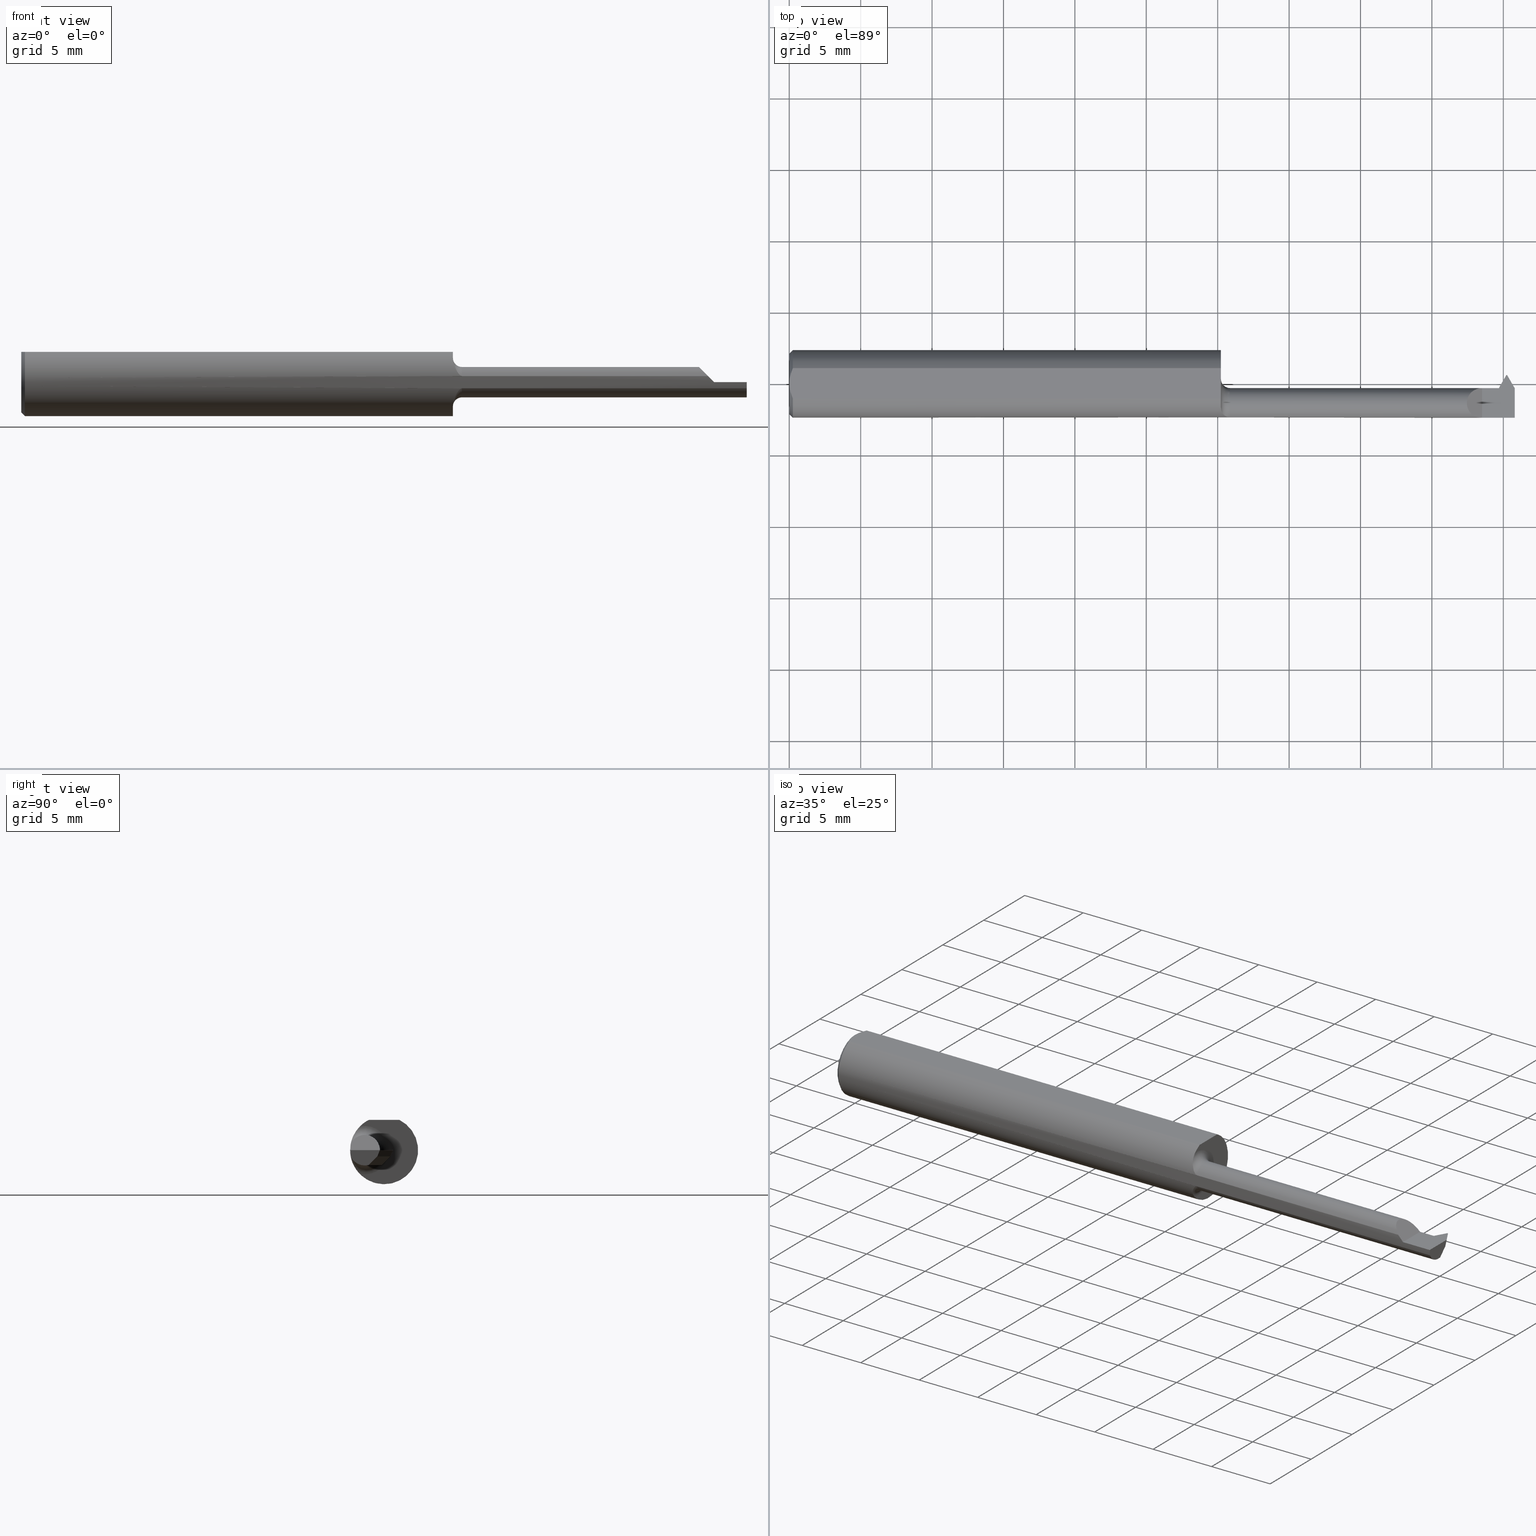
[diagram: canonical four-view strip — front | top / right | iso, engineering-drawing reading convention]
A machine part, canonical four-view strip (front | top / right | iso — engineering-drawing reading convention). The complete STEP part file that produces these views, byte-faithful:
ISO-10303-21;
HEADER;
FILE_DESCRIPTION (( 'STEP AP203' ),
    '1' );
FILE_NAME ('230163-TT120750.STEP',
    '2025-04-24T23:16:25',
    ( '' ),
    ( '' ),
    'SwSTEP 2.0',
    'SolidWorks 2024',
    '' );
FILE_SCHEMA (( 'CONFIG_CONTROL_DESIGN' ));
ENDSEC;

DATA;
#1 = EDGE_CURVE ( 'NONE', #104, #695, #746, .T. ) ;
#2 = CARTESIAN_POINT ( 'NONE',  ( 1.956215390309173685, -0.01159999999999999747, 0.000000000000000000 ) ) ;
#3 =( BOUNDED_CURVE ( )  B_SPLINE_CURVE ( 3, ( #574, #258, #501, #392 ),
 .UNSPECIFIED., .F., .T. ) 
 B_SPLINE_CURVE_WITH_KNOTS ( ( 4, 4 ),
 ( 5.125301605908225255, 7.853981633974481902 ),
 .UNSPECIFIED. ) 
 CURVE ( )  GEOMETRIC_REPRESENTATION_ITEM ( )  RATIONAL_B_SPLINE_CURVE ( ( 1.000000000000000000, 0.4699951750264964589, 0.4699951750264964589, 1.000000000000000000 ) ) 
 REPRESENTATION_ITEM ( '' )  );
#4 = VERTEX_POINT ( 'NONE', #185 ) ;
#5 = CARTESIAN_POINT ( 'NONE',  ( 1.189999999999999947, 0.09359999999999990550, 0.000000000000000000 ) ) ;
#6 = VECTOR ( 'NONE', #18, 39.37007874015748143 ) ;
#7 = FACE_OUTER_BOUND ( 'NONE', #638, .T. ) ;
#8 = CONICAL_SURFACE ( 'NONE', #89, 0.08360000000000017417, 0.7853981633974466137 ) ;
#9 = ORIENTED_EDGE ( 'NONE', *, *, #787, .F. ) ;
#10 = CARTESIAN_POINT ( 'NONE',  ( 1.979000000000000092, 0.02439999999999998420, 0.000000000000000000 ) ) ;
#11 = CARTESIAN_POINT ( 'NONE',  ( 1.944157112200977977, -0.01465827810819476766, -0.01573347692346793378 ) ) ;
#12 = ORIENTED_EDGE ( 'NONE', *, *, #284, .F. ) ;
#13 = ADVANCED_FACE ( 'NONE', ( #132 ), #426, .F. ) ;
#14 = LINE ( 'NONE', #73, #432 ) ;
#15 = DIRECTION ( 'NONE',  ( 0.000000000000000000, -0.1908089953765452484, -0.9816271834476639757 ) ) ;
#16 = ORIENTED_EDGE ( 'NONE', *, *, #471, .F. ) ;
#17 = FACE_OUTER_BOUND ( 'NONE', #648, .T. ) ;
#18 = DIRECTION ( 'NONE',  ( -0.09759940488030204031, 0.6141129260146579449, 0.7831600540558271151 ) ) ;
#19 = VECTOR ( 'NONE', #249, 39.37007874015748143 ) ;
#20 = VERTEX_POINT ( 'NONE', #688 ) ;
#21 = PLANE ( 'NONE',  #255 ) ;
#22 = CARTESIAN_POINT ( 'NONE',  ( 1.958160445373316572, -0.01548700727932111887, -0.01764701096325277038 ) ) ;
#23 = EDGE_CURVE ( 'NONE', #543, #142, #790, .T. ) ;
#24 = ADVANCED_FACE ( 'NONE', ( #242 ), #122, .T. ) ;
#25 = VECTOR ( 'NONE', #302, 39.37007874015748143 ) ;
#26 = VERTEX_POINT ( 'NONE', #732 ) ;
#27 = DIRECTION ( 'NONE',  ( 0.000000000000000000, 0.000000000000000000, -1.000000000000000000 ) ) ;
#28 = CARTESIAN_POINT ( 'NONE',  ( 0.000000000000000000, 0.000000000000000000, 0.08359999999999992437 ) ) ;
#29 = APPROVAL ( #351, 'UNSPECIFIED' ) ;
#30 = ORIENTED_EDGE ( 'NONE', *, *, #673, .T. ) ;
#31 = CC_DESIGN_APPROVAL ( #690, ( #172 ) ) ;
#32 = CARTESIAN_POINT ( 'NONE',  ( 0.009999999999999877043, 0.000000000000000000, -0.09360000000000001652 ) ) ;
#33 = CARTESIAN_POINT ( 'NONE',  ( 2.999519565323725069E-32, -0.09359999999999998876, 2.449293598294709866E-16 ) ) ;
#34 = DIRECTION ( 'NONE',  ( 0.000000000000000000, 0.000000000000000000, 1.000000000000000000 ) ) ;
#35 = LINE ( 'NONE', #346, #50 ) ;
#36 = EDGE_CURVE ( 'NONE', #169, #743, #175, .T. ) ;
#37 = CARTESIAN_POINT ( 'NONE',  ( 1.189999999999999947, 0.000000000000000000, 0.000000000000000000 ) ) ;
#38 = DIRECTION ( 'NONE',  ( -0.002639263425897794661, 0.3583667013992591355, 0.9335771749656173180 ) ) ;
#39 = ADVANCED_BREP_SHAPE_REPRESENTATION ( '230163-TT120750', ( #145, #234 ), #588 ) ;
#40 = ORIENTED_EDGE ( 'NONE', *, *, #757, .F. ) ;
#41 = FACE_OUTER_BOUND ( 'NONE', #675, .T. ) ;
#42 = CARTESIAN_POINT ( 'NONE',  ( 1.977048059742080532, 0.01787431140440123509, -0.01699999999999679545 ) ) ;
#43 = VERTEX_POINT ( 'NONE', #114 ) ;
#44 = AXIS2_PLACEMENT_3D ( 'NONE', #631, #561, #148 ) ;
#45 = ORIENTED_EDGE ( 'NONE', *, *, #672, .F. ) ;
#46 = CYLINDRICAL_SURFACE ( 'NONE', #468, 0.04200000000000005118 ) ;
#47 = AXIS2_PLACEMENT_3D ( 'NONE', #461, #404, #705 ) ;
#48 = ADVANCED_FACE ( 'NONE', ( #627 ), #678, .T. ) ;
#49 = ORIENTED_EDGE ( 'NONE', *, *, #250, .T. ) ;
#50 = VECTOR ( 'NONE', #223, 39.37007874015748143 ) ;
#51 = PERSON_AND_ORGANIZATION ( #383, #754 ) ;
#52 = FACE_OUTER_BOUND ( 'NONE', #643, .T. ) ;
#53 = CARTESIAN_POINT ( 'NONE',  ( 1.206246254951216068, -0.09087486346021456107, 0.02250610835616446287 ) ) ;
#54 = DATE_AND_TIME ( #729, #694 ) ;
#55 = FACE_OUTER_BOUND ( 'NONE', #748, .T. ) ;
#56 = CARTESIAN_POINT ( 'NONE',  ( 1.944157112200977977, -0.01465827810819476766, -0.01573347692346793378 ) ) ;
#57 = PRODUCT_DEFINITION_SHAPE ( 'NONE', 'NONE',  #747 ) ;
#58 = ORIENTED_EDGE ( 'NONE', *, *, #274, .F. ) ;
#59 = CARTESIAN_POINT ( 'NONE',  ( 1.204665360541867791, -0.09032542640524117428, -0.02464512177151387609 ) ) ;
#60 = AXIS2_PLACEMENT_3D ( 'NONE', #127, #799, #378 ) ;
#61 = CARTESIAN_POINT ( 'NONE',  ( 1.194091173271815132, -0.08239225417103622495, 0.04468952776629322998 ) ) ;
#62 = VECTOR ( 'NONE', #444, 39.37007874015748854 ) ;
#63 = ORIENTED_EDGE ( 'NONE', *, *, #135, .T. ) ;
#64 = DATE_AND_TIME ( #555, #653 ) ;
#65 = EDGE_CURVE ( 'NONE', #632, #285, #313, .T. ) ;
#66 = DIRECTION ( 'NONE',  ( -1.000000000000000000, -5.600139467623446789E-17, -0.000000000000000000 ) ) ;
#67 = CARTESIAN_POINT ( 'NONE',  ( 1.958123224213872859, -0.01543225915984472625, -0.01752779390450338176 ) ) ;
#68 = VERTEX_POINT ( 'NONE', #67 ) ;
#69 = DIRECTION ( 'NONE',  ( -0.1095011742102275504, 0.1896615972205658029, 0.9757243316563983804 ) ) ;
#70 = PRODUCT_DEFINITION_FORMATION_WITH_SPECIFIED_SOURCE ( 'ANY', '', #180, .NOT_KNOWN. ) ;
#71 = DIRECTION ( 'NONE',  ( 0.000000000000000000, 0.000000000000000000, -1.000000000000000000 ) ) ;
#72 = ORIENTED_EDGE ( 'NONE', *, *, #370, .F. ) ;
#73 = CARTESIAN_POINT ( 'NONE',  ( 1.978000000000000425, 0.01952312029688579170, -0.01699999999999975489 ) ) ;
#74 = DIRECTION ( 'NONE',  ( -0.000000000000000000, 1.000000000000000000, -0.000000000000000000 ) ) ;
#75 = EDGE_CURVE ( 'NONE', #101, #439, #719, .T. ) ;
#76 = ORIENTED_EDGE ( 'NONE', *, *, #84, .F. ) ;
#77 = CARTESIAN_POINT ( 'NONE',  ( 1.189999999999999947, 0.02439999999999992522, 9.919639073093575991E-17 ) ) ;
#78 = CARTESIAN_POINT ( 'NONE',  ( 1.956215390309173685, -0.01159999999999999747, 0.000000000000000000 ) ) ;
#79 = ORIENTED_EDGE ( 'NONE', *, *, #787, .T. ) ;
#80 = CARTESIAN_POINT ( 'NONE',  ( 0.009999999999999877043, 0.04209513035969860567, 0.08359999999999989662 ) ) ;
#81 = LINE ( 'NONE', #762, #721 ) ;
#82 = UNCERTAINTY_MEASURE_WITH_UNIT (LENGTH_MEASURE( 1.000000000000000082E-05 ), #644, 'distance_accuracy_value', 'NONE');
#83 = ORIENTED_EDGE ( 'NONE', *, *, #509, .T. ) ;
#84 = EDGE_CURVE ( 'NONE', #369, #20, #681, .T. ) ;
#85 = DIRECTION ( 'NONE',  ( 0.1075127992097129614, 0.000000000000000000, -0.9942037004588605287 ) ) ;
#86 = CARTESIAN_POINT ( 'NONE',  ( 2.048539628981006278, -0.5838206687851489329, -0.7425220104241953001 ) ) ;
#87 = ORIENTED_EDGE ( 'NONE', *, *, #485, .F. ) ;
#88 =( BOUNDED_CURVE ( )  B_SPLINE_CURVE ( 3, ( #455, #581, #22, #270 ),
 .UNSPECIFIED., .F., .T. ) 
 B_SPLINE_CURVE_WITH_KNOTS ( ( 4, 4 ),
 ( 3.487116828093227205, 3.496487303261009316 ),
 .UNSPECIFIED. ) 
 CURVE ( )  GEOMETRIC_REPRESENTATION_ITEM ( )  RATIONAL_B_SPLINE_CURVE ( ( 1.000000000000000000, 0.9999926828629792652, 0.9999926828629792652, 1.000000000000000000 ) ) 
 REPRESENTATION_ITEM ( '' )  );
#89 = AXIS2_PLACEMENT_3D ( 'NONE', #500, #691, #204 ) ;
#90 = CARTESIAN_POINT ( 'NONE',  ( 1.957981087998196923, -0.01465827810818012659, -0.01573347692347086199 ) ) ;
#91 = DIRECTION ( 'NONE',  ( 0.000000000000000000, 0.000000000000000000, -1.000000000000000000 ) ) ;
#92 = VECTOR ( 'NONE', #570, 39.37007874015748143 ) ;
#93 = ORIENTED_EDGE ( 'NONE', *, *, #358, .F. ) ;
#94 = DIRECTION ( 'NONE',  ( -0.02101556823978948177, 0.9997791485580996840, 0.000000000000000000 ) ) ;
#95 = ORIENTED_EDGE ( 'NONE', *, *, #498, .T. ) ;
#96 = CC_DESIGN_SECURITY_CLASSIFICATION ( #172, ( #70 ) ) ;
#97 = CARTESIAN_POINT ( 'NONE',  ( 0.009999999999999877043, 0.000000000000000000, 0.000000000000000000 ) ) ;
#98 = CARTESIAN_POINT ( 'NONE',  ( 1.960892469047972320, -0.03472121277308404252, -0.03875606750253036276 ) ) ;
#99 = FACE_OUTER_BOUND ( 'NONE', #572, .T. ) ;
#100 = DIRECTION ( 'NONE',  ( 0.7071067811865486830, 0.000000000000000000, -0.7071067811865462405 ) ) ;
#101 = VERTEX_POINT ( 'NONE', #478 ) ;
#102 = DIRECTION ( 'NONE',  ( 0.000000000000000000, -0.7071067811865509034, 0.7071067811865441310 ) ) ;
#103 = LINE ( 'NONE', #664, #374 ) ;
#104 = VERTEX_POINT ( 'NONE', #2 ) ;
#105 = PERSON_AND_ORGANIZATION_ROLE ( 'classification_officer' ) ;
#106 = EDGE_CURVE ( 'NONE', #142, #285, #339, .T. ) ;
#107 = EDGE_CURVE ( 'NONE', #487, #604, #179, .T. ) ;
#108 = DIRECTION ( 'NONE',  ( 1.000000000000000000, 5.600139467623446789E-17, 0.000000000000000000 ) ) ;
#109 = EDGE_LOOP ( 'NONE', ( #446, #540, #752, #93 ) ) ;
#110 = APPROVAL_STATUS ( 'not_yet_approved' ) ;
#111 = CARTESIAN_POINT ( 'NONE',  ( 1.893146287756234614, -0.09207014925373130376, 0.01685371224376530641 ) ) ;
#112 = CC_DESIGN_PERSON_AND_ORGANIZATION_ASSIGNMENT ( #355, #549, ( #747 ) ) ;
#113 = VECTOR ( 'NONE', #772, 39.37007874015748854 ) ;
#114 = CARTESIAN_POINT ( 'NONE',  ( 1.961238788024069368, -0.03450815044186156949, -0.04200000000000285449 ) ) ;
#115 = VERTEX_POINT ( 'NONE', #515 ) ;
#116 = APPROVAL_ROLE ( '' ) ;
#117 = CARTESIAN_POINT ( 'NONE',  ( 1.192599756579037162, -0.07984340602545507426, -0.04912629365152888783 ) ) ;
#118 = CARTESIAN_POINT ( 'NONE',  ( 1.947215390309172900, -0.01159999999999992634, 0.000000000000000000 ) ) ;
#119 = ORIENTED_EDGE ( 'NONE', *, *, #442, .F. ) ;
#120 = PERSON_AND_ORGANIZATION ( #383, #754 ) ;
#121 = CARTESIAN_POINT ( 'NONE',  ( 1.189999999999999947, -0.05360000000000008508, 0.000000000000000000 ) ) ;
#122 = CYLINDRICAL_SURFACE ( 'NONE', #60, 0.09360000000000001652 ) ;
#123 = EDGE_CURVE ( 'NONE', #460, #632, #81, .T. ) ;
#124 = ORIENTED_EDGE ( 'NONE', *, *, #396, .T. ) ;
#125 = FACE_OUTER_BOUND ( 'NONE', #133, .T. ) ;
#126 = VECTOR ( 'NONE', #418, 39.37007874015748143 ) ;
#127 = CARTESIAN_POINT ( 'NONE',  ( 0.000000000000000000, 0.000000000000000000, 0.000000000000000000 ) ) ;
#128 = CIRCLE ( 'NONE', #493, 0.09360000000000001652 ) ;
#129 = ORIENTED_EDGE ( 'NONE', *, *, #376, .F. ) ;
#130 = CIRCLE ( 'NONE', #269, 0.09360000000000001652 ) ;
#131 = CARTESIAN_POINT ( 'NONE',  ( 1.956215390309173685, -0.01159999999999999747, 0.000000000000000000 ) ) ;
#132 = FACE_OUTER_BOUND ( 'NONE', #157, .T. ) ;
#133 = EDGE_LOOP ( 'NONE', ( #286, #415, #689 ) ) ;
#134 = DIRECTION ( 'NONE',  ( 0.5000000000000065503, 0.8660254037844348218, 0.000000000000000000 ) ) ;
#135 = EDGE_CURVE ( 'NONE', #290, #266, #646, .T. ) ;
#136 = AXIS2_PLACEMENT_3D ( 'NONE', #531, #776, #222 ) ;
#137 = LINE ( 'NONE', #382, #62 ) ;
#138 = ORIENTED_EDGE ( 'NONE', *, *, #36, .T. ) ;
#139 = PLANE ( 'NONE',  #750 ) ;
#140 = CC_DESIGN_DATE_AND_TIME_ASSIGNMENT ( #476, #301, ( #172 ) ) ;
#141 = DIRECTION ( 'NONE',  ( 0.000000000000000000, -1.000000000000000000, 0.000000000000000000 ) ) ;
#142 = VERTEX_POINT ( 'NONE', #11 ) ;
#143 = DIRECTION ( 'NONE',  ( 5.600139467623446789E-17, -1.000000000000000000, 0.000000000000000000 ) ) ;
#144 = DIRECTION ( 'NONE',  ( 0.000000000000000000, 0.3623424103984885236, 0.9320450512859415060 ) ) ;
#145 = MANIFOLD_SOLID_BREP ( 'Cut-Sweep1', #547 ) ;
#146 = ORIENTED_EDGE ( 'NONE', *, *, #485, .T. ) ;
#147 = CARTESIAN_POINT ( 'NONE',  ( 2.000000000000000000, -0.2500000000000000555, 0.000000000000000000 ) ) ;
#148 = DIRECTION ( 'NONE',  ( 0.000000000000000000, -0.3583679495452941066, -0.9335804264972040745 ) ) ;
#149 = ORIENTED_EDGE ( 'NONE', *, *, #430, .T. ) ;
#150 = EDGE_CURVE ( 'NONE', #252, #604, #297, .T. ) ;
#151 = DIRECTION ( 'NONE',  ( 1.000000000000000000, 5.600139467623446789E-17, 0.000000000000000000 ) ) ;
#152 = CARTESIAN_POINT ( 'NONE',  ( 1.958123224213872859, -0.05360000000000004344, 0.000000000000000000 ) ) ;
#153 = ORIENTED_EDGE ( 'NONE', *, *, #410, .F. ) ;
#154 = VECTOR ( 'NONE', #134, 39.37007874015748854 ) ;
#155 = DIRECTION ( 'NONE',  ( 0.000000000000000000, -0.7071067811865441310, -0.7071067811865509034 ) ) ;
#156 = CARTESIAN_POINT ( 'NONE',  ( 1.583607695154586548, -0.09207014925373126213, 0.01685371224376544519 ) ) ;
#157 = EDGE_LOOP ( 'NONE', ( #623, #449 ) ) ;
#158 = CARTESIAN_POINT ( 'NONE',  ( 0.000000000000000000, 0.000000000000000000, 0.000000000000000000 ) ) ;
#159 = CARTESIAN_POINT ( 'NONE',  ( 0.009999999999999877043, 0.000000000000000000, 0.000000000000000000 ) ) ;
#160 = EDGE_CURVE ( 'NONE', #252, #586, #163, .T. ) ;
#161 = DIRECTION ( 'NONE',  ( 0.000000000000000000, -1.000000000000000000, 0.000000000000000000 ) ) ;
#162 = DIRECTION ( 'NONE',  ( 0.000000000000000000, -0.7071067811865461294, -0.7071067811865489050 ) ) ;
#163 = CIRCLE ( 'NONE', #602, 0.08360000000000017417 ) ;
#164 = CARTESIAN_POINT ( 'NONE',  ( 1.958233473925546475, -0.01559817617613203436, -0.01788466902292853641 ) ) ;
#165 = LINE ( 'NONE', #463, #619 ) ;
#166 = AXIS2_PLACEMENT_3D ( 'NONE', #254, #495, #751 ) ;
#167 = CIRCLE ( 'NONE', #582, 0.09360000000000001652 ) ;
#168 = EDGE_CURVE ( 'NONE', #68, #26, #707, .T. ) ;
#169 = VERTEX_POINT ( 'NONE', #327 ) ;
#170 = LINE ( 'NONE', #465, #401 ) ;
#171 = ORIENTED_EDGE ( 'NONE', *, *, #734, .F. ) ;
#172 = SECURITY_CLASSIFICATION ( '', '', #479 ) ;
#173 = APPROVAL_DATE_TIME ( #362, #690 ) ;
#174 = CARTESIAN_POINT ( 'NONE',  ( 1.957981087998196923, -0.01465827810818012659, -0.01573347692347086199 ) ) ;
#175 = LINE ( 'NONE', #668, #126 ) ;
#176 = ORIENTED_EDGE ( 'NONE', *, *, #359, .F. ) ;
#177 = CALENDAR_DATE ( 2025, 24, 4 ) ;
#178 = CARTESIAN_POINT ( 'NONE',  ( 1.956215390309173685, -0.01159999999999999747, 0.000000000000000000 ) ) ;
#179 = LINE ( 'NONE', #796, #507 ) ;
#180 = PRODUCT ( '230163-TT120750', '230163-TT120750', '', ( #296 ) ) ;
#181 = EDGE_LOOP ( 'NONE', ( #617, #379, #788, #95 ) ) ;
#182 = DIRECTION ( 'NONE',  ( 0.000000000000000000, 0.000000000000000000, 1.000000000000000000 ) ) ;
#183 = CARTESIAN_POINT ( 'NONE',  ( 1.960072361890374593, -0.02716878841581448281, -0.03264032864712024251 ) ) ;
#184 = ADVANCED_FACE ( 'NONE', ( #765 ), #634, .F. ) ;
#185 = CARTESIAN_POINT ( 'NONE',  ( 1.189999999999999947, -0.04209513035969859179, 0.08359999999999992437 ) ) ;
#186 = VERTEX_POINT ( 'NONE', #213 ) ;
#187 = DATE_TIME_ROLE ( 'creation_date' ) ;
#188 = DIRECTION ( 'NONE',  ( 0.000000000000000000, 1.000000000000000000, 0.000000000000000000 ) ) ;
#189 = CARTESIAN_POINT ( 'NONE',  ( 1.212341178892590854, -0.09198016210675416526, 0.01735291095036402970 ) ) ;
#190 = ORIENTED_EDGE ( 'NONE', *, *, #358, .T. ) ;
#191 = CARTESIAN_POINT ( 'NONE',  ( 1.200331455114174828, -0.08838398833671959332, -0.03113919291468824138 ) ) ;
#192 = ORIENTED_EDGE ( 'NONE', *, *, #65, .T. ) ;
#193 = VECTOR ( 'NONE', #69, 39.37007874015748854 ) ;
#194 = ORIENTED_EDGE ( 'NONE', *, *, #376, .T. ) ;
#195 = EDGE_CURVE ( 'NONE', #474, #632, #3, .T. ) ;
#196 = AXIS2_PLACEMENT_3D ( 'NONE', #599, #413, #596 ) ;
#197 = DIRECTION ( 'NONE',  ( -1.224646799147355426E-16, 0.000000000000000000, -1.000000000000000000 ) ) ;
#198 = PLANE ( 'NONE',  #657 ) ;
#199 = ORIENTED_EDGE ( 'NONE', *, *, #335, .T. ) ;
#200 = DIRECTION ( 'NONE',  ( 0.000000000000000000, 1.000000000000000000, 0.000000000000000000 ) ) ;
#201 = CIRCLE ( 'NONE', #406, 0.08360000000000017417 ) ;
#202 = CARTESIAN_POINT ( 'NONE',  ( 0.000000000000000000, 0.000000000000000000, 0.08359999999999992437 ) ) ;
#203 = ORIENTED_EDGE ( 'NONE', *, *, #160, .T. ) ;
#204 = DIRECTION ( 'NONE',  ( 0.000000000000000000, 0.000000000000000000, -1.000000000000000000 ) ) ;
#205 = CARTESIAN_POINT ( 'NONE',  ( 2.000000000000000000, -0.01040109878389459952, 0.004043537593970810730 ) ) ;
#206 = ORIENTED_EDGE ( 'NONE', *, *, #75, .T. ) ;
#207 = AXIS2_PLACEMENT_3D ( 'NONE', #159, #350, #775 ) ;
#208 = DIRECTION ( 'NONE',  ( -0.7071067811865442421, 0.000000000000000000, -0.7071067811865509034 ) ) ;
#209 = CARTESIAN_POINT ( 'NONE',  ( 0.009999999999999877043, 0.04209513035969860567, 0.08359999999999989662 ) ) ;
#210 = EDGE_CURVE ( 'NONE', #43, #651, #641, .T. ) ;
#211 = ORIENTED_EDGE ( 'NONE', *, *, #347, .F. ) ;
#212 = DIRECTION ( 'NONE',  ( 0.4999999999999981681, -0.8660254037844397068, 0.000000000000000000 ) ) ;
#213 = CARTESIAN_POINT ( 'NONE',  ( 2.000000000000000000, -0.09360000000000001652, 0.000000000000000000 ) ) ;
#214 = ORIENTED_EDGE ( 'NONE', *, *, #23, .F. ) ;
#215 = CARTESIAN_POINT ( 'NONE',  ( 1.961435826313442821, -0.04388190474321993634, -0.04200000000000005812 ) ) ;
#216 = ORIENTED_EDGE ( 'NONE', *, *, #452, .T. ) ;
#217 = EDGE_CURVE ( 'NONE', #169, #68, #88, .T. ) ;
#218 = EDGE_CURVE ( 'NONE', #101, #419, #642, .T. ) ;
#219 = LINE ( 'NONE', #397, #565 ) ;
#220 = LINE ( 'NONE', #227, #304 ) ;
#221 = LINE ( 'NONE', #469, #621 ) ;
#222 = DIRECTION ( 'NONE',  ( -0.000000000000000000, 0.000000000000000000, 1.000000000000000000 ) ) ;
#223 = DIRECTION ( 'NONE',  ( 0.000000000000000000, -0.7071067811865461294, -0.7071067811865489050 ) ) ;
#224 = ADVANCED_FACE ( 'NONE', ( #7 ), #394, .T. ) ;
#225 = ORIENTED_EDGE ( 'NONE', *, *, #533, .F. ) ;
#226 = VECTOR ( 'NONE', #597, 39.37007874015748143 ) ;
#227 = CARTESIAN_POINT ( 'NONE',  ( 1.978951940257920539, 0.01787431140439485824, -0.01700000000000317230 ) ) ;
#228 = EDGE_LOOP ( 'NONE', ( #225, #453, #489, #49 ) ) ;
#229 = VECTOR ( 'NONE', #363, 39.37007874015748143 ) ;
#230 = ADVANCED_FACE ( 'NONE', ( #316 ), #198, .T. ) ;
#231 = PERSON_AND_ORGANIZATION ( #383, #754 ) ;
#232 = LINE ( 'NONE', #557, #229 ) ;
#233 = DIRECTION ( 'NONE',  ( -0.9816271834476639757, 0.000000000000000000, 0.1908089953765452484 ) ) ;
#234 = AXIS2_PLACEMENT_3D ( 'NONE', #541, #182, #601 ) ;
#235 = VERTEX_POINT ( 'NONE', #693 ) ;
#236 = COORDINATED_UNIVERSAL_TIME_OFFSET ( 8, 0, .BEHIND. ) ;
#237 = LINE ( 'NONE', #178, #25 ) ;
#238 = DIRECTION ( 'NONE',  ( 1.000000000000000000, 0.000000000000000000, 0.000000000000000000 ) ) ;
#239 = ORIENTED_EDGE ( 'NONE', *, *, #217, .T. ) ;
#240 = PERSON_AND_ORGANIZATION_ROLE ( 'design_supplier' ) ;
#241 = PLANE ( 'NONE',  #782 ) ;
#242 = FACE_OUTER_BOUND ( 'NONE', #259, .T. ) ;
#243 = ORIENTED_EDGE ( 'NONE', *, *, #335, .F. ) ;
#244 = PERSON_AND_ORGANIZATION ( #383, #754 ) ;
#245 = DIRECTION ( 'NONE',  ( 0.1075127992097129614, 0.000000000000000000, -0.9942037004588605287 ) ) ;
#246 = CARTESIAN_POINT ( 'NONE',  ( 1.190533642810113646, -0.07379783313327901995, 0.05781434694793449042 ) ) ;
#247 = ORIENTED_EDGE ( 'NONE', *, *, #250, .F. ) ;
#248 = CARTESIAN_POINT ( 'NONE',  ( 1.213627452150747077, -0.09207014925373124825, -0.01685371224376555968 ) ) ;
#249 = DIRECTION ( 'NONE',  ( -1.000000000000000000, -5.600139467623446789E-17, -0.000000000000000000 ) ) ;
#250 = EDGE_CURVE ( 'NONE', #583, #235, #137, .T. ) ;
#251 =( BOUNDED_CURVE ( )  B_SPLINE_CURVE ( 3, ( #654, #215, #98, #414 ),
 .UNSPECIFIED., .F., .T. ) 
 B_SPLINE_CURVE_WITH_KNOTS ( ( 4, 4 ),
 ( 3.333578871309169411, 4.014249778417044112 ),
 .UNSPECIFIED. ) 
 CURVE ( )  GEOMETRIC_REPRESENTATION_ITEM ( )  RATIONAL_B_SPLINE_CURVE ( ( 1.000000000000000000, 0.9617618287043554481, 0.9617618287043554481, 1.000000000000000000 ) ) 
 REPRESENTATION_ITEM ( '' )  );
#252 = VERTEX_POINT ( 'NONE', #202 ) ;
#253 = FACE_OUTER_BOUND ( 'NONE', #109, .T. ) ;
#254 = CARTESIAN_POINT ( 'NONE',  ( 0.000000000000000000, 0.000000000000000000, 0.000000000000000000 ) ) ;
#255 = AXIS2_PLACEMENT_3D ( 'NONE', #5, #260, #450 ) ;
#256 = EDGE_LOOP ( 'NONE', ( #725, #153, #388, #329 ) ) ;
#257 = CARTESIAN_POINT ( 'NONE',  ( 1.958123224213872859, -0.01490446525534110285, -0.01699999999999975489 ) ) ;
#258 = CARTESIAN_POINT ( 'NONE',  ( 1.839736977044367228, -0.06867161373106636657, 0.07026302295563210953 ) ) ;
#259 = EDGE_LOOP ( 'NONE', ( #176, #373, #199, #146, #12, #733, #659, #129, #348, #190, #767, #564, #663 ) ) ;
#260 = DIRECTION ( 'NONE',  ( 1.000000000000000000, 5.600139467623446789E-17, 0.000000000000000000 ) ) ;
#261 = CARTESIAN_POINT ( 'NONE',  ( 2.000000000000000000, -0.01197306695894668517, 0.000000000000000000 ) ) ;
#262 = ORIENTED_EDGE ( 'NONE', *, *, #590, .T. ) ;
#263 = PLANE ( 'NONE',  #399 ) ;
#264 = ADVANCED_FACE ( 'NONE', ( #697 ), #386, .F. ) ;
#265 = CARTESIAN_POINT ( 'NONE',  ( 0.007036739039485557373, 0.03550621559607056860, 0.08359999999999992437 ) ) ;
#266 = VERTEX_POINT ( 'NONE', #261 ) ;
#267 = AXIS2_PLACEMENT_3D ( 'NONE', #78, #319, #15 ) ;
#268 = CARTESIAN_POINT ( 'NONE',  ( 1.910000000000000142, -0.01159999999999999747, 9.919639073093575991E-17 ) ) ;
#269 = AXIS2_PLACEMENT_3D ( 'NONE', #484, #108, #188 ) ;
#270 = CARTESIAN_POINT ( 'NONE',  ( 1.958123224213872859, -0.01543225915984472625, -0.01752779390450338176 ) ) ;
#271 = ORIENTED_EDGE ( 'NONE', *, *, #562, .F. ) ;
#272 = CARTESIAN_POINT ( 'NONE',  ( 1.947215390309172900, -0.01159999999999992634, 0.000000000000000000 ) ) ;
#273 = APPROVAL_PERSON_ORGANIZATION ( #244, #791, #420 ) ;
#274 = EDGE_CURVE ( 'NONE', #792, #252, #326, .T. ) ;
#275 = VERTEX_POINT ( 'NONE', #758 ) ;
#276 = CARTESIAN_POINT ( 'NONE',  ( 0.009999999999999877043, -0.04209513035969860567, 0.08359999999999989662 ) ) ;
#277 = CARTESIAN_POINT ( 'NONE',  ( 2.042391769920532063, -0.1170066967947609310, -0.04200000000000003730 ) ) ;
#278 = CC_DESIGN_PERSON_AND_ORGANIZATION_ASSIGNMENT ( #726, #240, ( #70 ) ) ;
#279 = CARTESIAN_POINT ( 'NONE',  ( 1.977048059742080532, -0.007125688595601778648, -0.04200000000000003730 ) ) ;
#280 = CARTESIAN_POINT ( 'NONE',  ( 1.958149881984653007, -0.01526487251527705417, -0.01717645647600237260 ) ) ;
#281 = CARTESIAN_POINT ( 'NONE',  ( 2.000000000000000000, -0.01858199746962910237, -0.01699999999999975489 ) ) ;
#282 =( LENGTH_UNIT ( ) NAMED_UNIT ( * ) SI_UNIT ( $, .METRE. ) );
#283 = LINE ( 'NONE', #156, #761 ) ;
#284 = EDGE_CURVE ( 'NONE', #439, #474, #283, .T. ) ;
#285 = VERTEX_POINT ( 'NONE', #338 ) ;
#286 = ORIENTED_EDGE ( 'NONE', *, *, #210, .F. ) ;
#287 = COORDINATED_UNIVERSAL_TIME_OFFSET ( 8, 0, .BEHIND. ) ;
#288 = AXIS2_PLACEMENT_3D ( 'NONE', #566, #441, #322 ) ;
#289 = LINE ( 'NONE', #680, #724 ) ;
#290 = VERTEX_POINT ( 'NONE', #458 ) ;
#291 = VECTOR ( 'NONE', #727, 39.37007874015748143 ) ;
#292 = APPROVAL_DATE_TIME ( #64, #29 ) ;
#293 = PLANE ( 'NONE',  #687 ) ;
#294 = DIRECTION ( 'NONE',  ( 1.000000000000000000, -0.000000000000000000, -0.000000000000000000 ) ) ;
#295 = ORIENTED_EDGE ( 'NONE', *, *, #321, .F. ) ;
#296 = MECHANICAL_CONTEXT ( 'NONE', #511, 'mechanical' ) ;
#297 = B_SPLINE_CURVE_WITH_KNOTS ( 'NONE', 3,
 ( #700, #703, #323, #706, #265, #209 ),
 .UNSPECIFIED., .F., .F.,
 ( 4, 2, 4 ),
 ( 0.001744210492668867019, 0.002295110172257195866, 0.002846009851845524713 ),
 .UNSPECIFIED. ) ;
#298 = CARTESIAN_POINT ( 'NONE',  ( 1.189999999999999947, -0.07042526556309521013, -0.06188820058547968295 ) ) ;
#299 = CARTESIAN_POINT ( 'NONE',  ( 1.189999999999999947, -0.06665037313432835286, 0.06571672360255648160 ) ) ;
#300 = ORIENTED_EDGE ( 'NONE', *, *, #766, .F. ) ;
#301 = DATE_TIME_ROLE ( 'classification_date' ) ;
#302 = DIRECTION ( 'NONE',  ( 1.000000000000000000, -7.825606231850196397E-15, -0.000000000000000000 ) ) ;
#303 = CARTESIAN_POINT ( 'NONE',  ( 1.204680805881167549, -0.09033173497866232859, 0.02462299273440486311 ) ) ;
#304 = VECTOR ( 'NONE', #713, 39.37007874015748854 ) ;
#305 = ORIENTED_EDGE ( 'NONE', *, *, #672, .T. ) ;
#306 = APPROVAL_ROLE ( '' ) ;
#307 = CARTESIAN_POINT ( 'NONE',  ( 1.214999999999999858, -0.09207014925373123437, 0.01685371224376555968 ) ) ;
#308 = EDGE_CURVE ( 'NONE', #20, #235, #220, .T. ) ;
#309 = EDGE_CURVE ( 'NONE', #431, #695, #402, .T. ) ;
#310 = CARTESIAN_POINT ( 'NONE',  ( 1.213637246768939582, -0.09207014925426143526, 0.01685371224086983782 ) ) ;
#311 = ORIENTED_EDGE ( 'NONE', *, *, #218, .F. ) ;
#312 = FACE_OUTER_BOUND ( 'NONE', #497, .T. ) ;
#313 = LINE ( 'NONE', #608, #616 ) ;
#314 = ORIENTED_EDGE ( 'NONE', *, *, #430, .F. ) ;
#315 = DIRECTION ( 'NONE',  ( -1.000000000000000000, -5.600139467623446789E-17, -0.000000000000000000 ) ) ;
#316 = FACE_OUTER_BOUND ( 'NONE', #366, .T. ) ;
#317 = ORIENTED_EDGE ( 'NONE', *, *, #1, .T. ) ;
#318 = DIRECTION ( 'NONE',  ( 1.000000000000000000, 0.000000000000000000, 0.000000000000000000 ) ) ;
#319 = DIRECTION ( 'NONE',  ( -7.681827804141594725E-15, -0.9816271834476639757, 0.1908089953765452484 ) ) ;
#320 = ORIENTED_EDGE ( 'NONE', *, *, #308, .T. ) ;
#321 = EDGE_CURVE ( 'NONE', #467, #651, #251, .T. ) ;
#322 = DIRECTION ( 'NONE',  ( -0.4999999999999981126, 0.8660254037844397068, 0.000000000000000000 ) ) ;
#323 = CARTESIAN_POINT ( 'NONE',  ( 0.0009807498324115896879, 0.01453516766257749275, 0.08359999999999992437 ) ) ;
#324 = ORIENTED_EDGE ( 'NONE', *, *, #673, .F. ) ;
#325 = LINE ( 'NONE', #494, #435 ) ;
#326 = B_SPLINE_CURVE_WITH_KNOTS ( 'NONE', 3,
 ( #718, #584, #720, #28 ),
 .UNSPECIFIED., .F., .F.,
 ( 4, 4 ),
 ( 0.0006429768761302141322, 0.001744210492668867019 ),
 .UNSPECIFIED. ) ;
#327 = CARTESIAN_POINT ( 'NONE',  ( 1.958233473925546475, -0.01559817617613203436, -0.01788466902292853641 ) ) ;
#328 = AXIS2_PLACEMENT_3D ( 'NONE', #97, #411, #649 ) ;
#329 = ORIENTED_EDGE ( 'NONE', *, *, #218, .T. ) ;
#330 = PLANE ( 'NONE',  #580 ) ;
#331 = VECTOR ( 'NONE', #520, 39.37007874015748854 ) ;
#332 =( BOUNDED_CURVE ( )  B_SPLINE_CURVE ( 3, ( #613, #546, #417, #183 ),
 .UNSPECIFIED., .F., .T. ) 
 B_SPLINE_CURVE_WITH_KNOTS ( ( 4, 4 ),
 ( 2.786698003918577360, 3.036865397300217317 ),
 .UNSPECIFIED. ) 
 CURVE ( )  GEOMETRIC_REPRESENTATION_ITEM ( )  RATIONAL_B_SPLINE_CURVE ( ( 1.000000000000000000, 0.9947914859276588695, 0.9947914859276588695, 1.000000000000000000 ) ) 
 REPRESENTATION_ITEM ( '' )  );
#333 = CARTESIAN_POINT ( 'NONE',  ( 1.189999999999999947, -0.06665037313432835286, -0.06571672360255648160 ) ) ;
#334 = EDGE_CURVE ( 'NONE', #467, #43, #165, .T. ) ;
#335 = EDGE_CURVE ( 'NONE', #186, #460, #532, .T. ) ;
#336 = ORIENTED_EDGE ( 'NONE', *, *, #217, .F. ) ;
#337 = FACE_OUTER_BOUND ( 'NONE', #544, .T. ) ;
#338 = CARTESIAN_POINT ( 'NONE',  ( 1.947215390309172900, -0.01159999999999992634, 0.000000000000000000 ) ) ;
#339 =( BOUNDED_CURVE ( )  B_SPLINE_CURVE ( 3, ( #56, #548, #674, #118 ),
 .UNSPECIFIED., .F., .F. ) 
 B_SPLINE_CURVE_WITH_KNOTS ( ( 4, 4 ),
 ( 1.186823891356153737, 1.570796326794896780 ),
 .UNSPECIFIED. ) 
 CURVE ( )  GEOMETRIC_REPRESENTATION_ITEM ( )  RATIONAL_B_SPLINE_CURVE ( ( 1.000000000000000000, 0.9877514556317765759, 0.9877514556317765759, 1.000000000000000000 ) ) 
 REPRESENTATION_ITEM ( '' )  );
#340 = APPROVAL_PERSON_ORGANIZATION ( #612, #29, #116 ) ;
#341 = CC_DESIGN_PERSON_AND_ORGANIZATION_ASSIGNMENT ( #51, #666, ( #180 ) ) ;
#342 = ORIENTED_EDGE ( 'NONE', *, *, #65, .F. ) ;
#343 = CARTESIAN_POINT ( 'NONE',  ( 1.956215390309173685, -0.01159999999999999747, 0.000000000000000000 ) ) ;
#344 = CARTESIAN_POINT ( 'NONE',  ( 1.583607695154586548, -0.09207014925373126213, -0.01685371224376544519 ) ) ;
#345 = LINE ( 'NONE', #407, #226 ) ;
#346 = CARTESIAN_POINT ( 'NONE',  ( 1.958123224213872859, -0.01490446525534110285, -0.01699999999999975489 ) ) ;
#347 = EDGE_CURVE ( 'NONE', #275, #20, #779, .T. ) ;
#348 = ORIENTED_EDGE ( 'NONE', *, *, #685, .T. ) ;
#349 = DIRECTION ( 'NONE',  ( 1.000000000000000000, 0.000000000000000000, -0.000000000000000000 ) ) ;
#350 = DIRECTION ( 'NONE',  ( 1.000000000000000000, 0.000000000000000000, 0.000000000000000000 ) ) ;
#351 = APPROVAL_STATUS ( 'not_yet_approved' ) ;
#352 = CARTESIAN_POINT ( 'NONE',  ( 1.961640102722211676, -0.05360000000000004344, -0.04200000000000005118 ) ) ;
#353 = AXIS2_PLACEMENT_3D ( 'NONE', #152, #508, #451 ) ;
#354 = ORIENTED_EDGE ( 'NONE', *, *, #274, .T. ) ;
#355 = PERSON_AND_ORGANIZATION ( #383, #754 ) ;
#356 = AXIS2_PLACEMENT_3D ( 'NONE', #630, #315, #143 ) ;
#357 = CARTESIAN_POINT ( 'NONE',  ( 1.214999999999999858, -0.09207014925373122050, -0.01685371224376561866 ) ) ;
#358 = EDGE_CURVE ( 'NONE', #783, #604, #551, .T. ) ;
#359 = EDGE_CURVE ( 'NONE', #770, #698, #716, .T. ) ;
#360 = CARTESIAN_POINT ( 'NONE',  ( 1.197959848388074677, -0.08665969772256711112, 0.03571742193933133414 ) ) ;
#361 = ORIENTED_EDGE ( 'NONE', *, *, #1, .F. ) ;
#362 = DATE_AND_TIME ( #177, #380 ) ;
#363 = DIRECTION ( 'NONE',  ( 0.4999999999999948375, -0.8660254037844417052, 0.000000000000000000 ) ) ;
#364 = CARTESIAN_POINT ( 'NONE',  ( 1.200323772047401150, -0.08838176252376915565, 0.03114868400121304989 ) ) ;
#365 = PRODUCT_RELATED_PRODUCT_CATEGORY ( 'detail', '', ( #180 ) ) ;
#366 = EDGE_LOOP ( 'NONE', ( #194, #759, #475, #554, #58 ) ) ;
#367 = CARTESIAN_POINT ( 'NONE',  ( 1.963132134805906981, -1.941022339785571704, 0.3110804613732560675 ) ) ;
#368 = CARTESIAN_POINT ( 'NONE',  ( 1.947215390309172900, -0.01159999999999992634, 0.000000000000000000 ) ) ;
#369 = VERTEX_POINT ( 'NONE', #279 ) ;
#370 = EDGE_CURVE ( 'NONE', #290, #275, #523, .T. ) ;
#371 = APPROVAL_DATE_TIME ( #54, #791 ) ;
#372 = CARTESIAN_POINT ( 'NONE',  ( 1.212324523699173762, -0.09197884972478911902, -0.01736005722475516058 ) ) ;
#373 = ORIENTED_EDGE ( 'NONE', *, *, #516, .T. ) ;
#374 = VECTOR ( 'NONE', #777, 39.37007874015748143 ) ;
#375 = ORIENTED_EDGE ( 'NONE', *, *, #135, .F. ) ;
#376 = EDGE_CURVE ( 'NONE', #792, #4, #221, .T. ) ;
#377 = DIRECTION ( 'NONE',  ( 1.000000000000000000, 0.000000000000000000, 0.000000000000000000 ) ) ;
#378 = DIRECTION ( 'NONE',  ( 0.000000000000000000, 0.000000000000000000, 1.000000000000000000 ) ) ;
#379 = ORIENTED_EDGE ( 'NONE', *, *, #23, .T. ) ;
#380 = LOCAL_TIME ( 16, 16, 25.00000000000000000, #287 ) ;
#381 = DIRECTION ( 'NONE',  ( -0.7071067811865507924, 0.000000000000000000, 0.7071067811865441310 ) ) ;
#382 = CARTESIAN_POINT ( 'NONE',  ( 1.978986214582837189, 0.02252817681339299577, -0.004876266114470220389 ) ) ;
#383 = PERSON ( 'UNSPECIFIED', 'UNSPECIFIED', 'UNSPECIFIED', ('UNSPECIFIED'), ('UNSPECIFIED'), ('UNSPECIFIED') ) ;
#384 = EDGE_LOOP ( 'NONE', ( #559, #87, #403 ) ) ;
#385 = FACE_OUTER_BOUND ( 'NONE', #539, .T. ) ;
#386 = PLANE ( 'NONE',  #267 ) ;
#387 = EDGE_CURVE ( 'NONE', #142, #285, #529, .T. ) ;
#388 = ORIENTED_EDGE ( 'NONE', *, *, #525, .T. ) ;
#389 = FACE_OUTER_BOUND ( 'NONE', #505, .T. ) ;
#390 = ORIENTED_EDGE ( 'NONE', *, *, #562, .T. ) ;
#391 = DIRECTION ( 'NONE',  ( -1.000000000000000000, 0.000000000000000000, 1.224646799147355426E-16 ) ) ;
#392 = CARTESIAN_POINT ( 'NONE',  ( 1.910000000000000142, -0.01159999999999999747, 9.919639073093575991E-17 ) ) ;
#393 = ORIENTED_EDGE ( 'NONE', *, *, #168, .T. ) ;
#394 = CONICAL_SURFACE ( 'NONE', #166, 0.08360000000000017417, 0.7853981633974466137 ) ;
#395 = ADVANCED_FACE ( 'NONE', ( #594 ), #408, .F. ) ;
#396 = EDGE_CURVE ( 'NONE', #586, #783, #170, .T. ) ;
#397 = CARTESIAN_POINT ( 'NONE',  ( 2.000000000000000000, 0.000000000000000000, 0.000000000000000000 ) ) ;
#398 = DIRECTION ( 'NONE',  ( -1.000000000000000000, -5.600139467623446789E-17, -0.000000000000000000 ) ) ;
#399 = AXIS2_PLACEMENT_3D ( 'NONE', #147, #197, #391 ) ;
#400 = ORIENTED_EDGE ( 'NONE', *, *, #416, .T. ) ;
#401 = VECTOR ( 'NONE', #100, 39.37007874015748854 ) ;
#402 = LINE ( 'NONE', #656, #412 ) ;
#403 = ORIENTED_EDGE ( 'NONE', *, *, #123, .T. ) ;
#404 = DIRECTION ( 'NONE',  ( -0.7745966692414787413, 0.4472135954999629237, -0.4472135954999612029 ) ) ;
#405 = DIRECTION ( 'NONE',  ( 1.000000000000000000, 0.000000000000000000, 0.000000000000000000 ) ) ;
#406 = AXIS2_PLACEMENT_3D ( 'NONE', #158, #595, #27 ) ;
#407 = CARTESIAN_POINT ( 'NONE',  ( 2.000715925234056058, 0.03386825694320488855, -0.04200000000000003730 ) ) ;
#408 = PLANE ( 'NONE',  #196 ) ;
#409 = VECTOR ( 'NONE', #294, 39.37007874015748143 ) ;
#410 = EDGE_CURVE ( 'NONE', #4, #487, #103, .T. ) ;
#411 = DIRECTION ( 'NONE',  ( 1.000000000000000000, 0.000000000000000000, 0.000000000000000000 ) ) ;
#412 = VECTOR ( 'NONE', #38, 39.37007874015748854 ) ;
#413 = DIRECTION ( 'NONE',  ( 0.8501140779110463175, -0.4908135917238287127, 0.1908089953765453040 ) ) ;
#414 = CARTESIAN_POINT ( 'NONE',  ( 1.960072361890374593, -0.02716878841581448281, -0.03264032864712024251 ) ) ;
#415 = ORIENTED_EDGE ( 'NONE', *, *, #334, .F. ) ;
#416 = EDGE_CURVE ( 'NONE', #68, #26, #35, .T. ) ;
#417 = CARTESIAN_POINT ( 'NONE',  ( 1.959772643405776504, -0.02989775884994297014, -0.03485017143795873795 ) ) ;
#418 = DIRECTION ( 'NONE',  ( -0.09759940488030204031, 0.6141129260146579449, 0.7831600540558271151 ) ) ;
#419 = VERTEX_POINT ( 'NONE', #333 ) ;
#420 = APPROVAL_ROLE ( '' ) ;
#421 = CARTESIAN_POINT ( 'NONE',  ( 1.904343558428414962, -0.09360000000000001652, 0.005656441571585563502 ) ) ;
#422 = DIRECTION ( 'NONE',  ( 1.000000000000000000, 5.600139467623446789E-17, 0.000000000000000000 ) ) ;
#423 = ORIENTED_EDGE ( 'NONE', *, *, #416, .F. ) ;
#424 = APPLICATION_PROTOCOL_DEFINITION ( 'international standard', 'config_control_design', 1994, #511 ) ;
#425 = CARTESIAN_POINT ( 'NONE',  ( 1.189999999999999947, -0.06665037313432835286, -0.06571672360255648160 ) ) ;
#426 = PLANE ( 'NONE',  #445 ) ;
#427 = ORIENTED_EDGE ( 'NONE', *, *, #757, .T. ) ;
#428 = CARTESIAN_POINT ( 'NONE',  ( 1.910000000000000142, -0.09360000000000005815, 1.102182119232617911E-17 ) ) ;
#429 = CARTESIAN_POINT ( 'NONE',  ( 1.214999999999999858, -0.09207014925373123437, 0.01685371224376555968 ) ) ;
#430 = EDGE_CURVE ( 'NONE', #431, #369, #661, .T. ) ;
#431 = VERTEX_POINT ( 'NONE', #769 ) ;
#432 = VECTOR ( 'NONE', #212, 39.37007874015748143 ) ;
#433 = DIRECTION ( 'NONE',  ( 0.000000000000000000, 0.000000000000000000, 1.000000000000000000 ) ) ;
#434 = CARTESIAN_POINT ( 'NONE',  ( 1.958123224213872859, -0.01490446525534110285, -0.01699999999999975489 ) ) ;
#435 = VECTOR ( 'NONE', #200, 39.37007874015748143 ) ;
#436 = ORIENTED_EDGE ( 'NONE', *, *, #533, .T. ) ;
#437 = DIRECTION ( 'NONE',  ( 0.9939866663323930762, 0.02089380904360333552, 0.1074893292241860809 ) ) ;
#438 = CARTESIAN_POINT ( 'NONE',  ( 2.191425808082400728, 0.09360000000000001652, 0.08359999999999992437 ) ) ;
#439 = VERTEX_POINT ( 'NONE', #307 ) ;
#440 = APPROVAL_PERSON_ORGANIZATION ( #231, #690, #306 ) ;
#441 = DIRECTION ( 'NONE',  ( 0.7745966692414855137, 0.4472135954999569840, -0.4472135954999552077 ) ) ;
#442 = EDGE_CURVE ( 'NONE', #115, #467, #477, .T. ) ;
#443 = EDGE_CURVE ( 'NONE', #439, #698, #537, .T. ) ;
#444 = DIRECTION ( 'NONE',  ( -0.002639263425898504597, -0.3583667013992591910, -0.9335771749656173180 ) ) ;
#445 = AXIS2_PLACEMENT_3D ( 'NONE', #368, #233, #622 ) ;
#446 = ORIENTED_EDGE ( 'NONE', *, *, #396, .F. ) ;
#447 = LINE ( 'NONE', #257, #154 ) ;
#448 = CARTESIAN_POINT ( 'NONE',  ( 0.000000000000000000, 0.000000000000000000, 0.000000000000000000 ) ) ;
#449 = ORIENTED_EDGE ( 'NONE', *, *, #387, .F. ) ;
#450 = DIRECTION ( 'NONE',  ( -5.600139467623446789E-17, 1.000000000000000000, 0.000000000000000000 ) ) ;
#451 = DIRECTION ( 'NONE',  ( 0.000000000000000000, 3.455462491986042419E-15, -1.000000000000000000 ) ) ;
#452 = EDGE_CURVE ( 'NONE', #26, #651, #332, .T. ) ;
#453 = ORIENTED_EDGE ( 'NONE', *, *, #309, .T. ) ;
#454 = LENGTH_MEASURE_WITH_UNIT ( LENGTH_MEASURE( 0.02539999999999999897 ), #282 );
#455 = CARTESIAN_POINT ( 'NONE',  ( 1.958233473925546475, -0.01559817617613203436, -0.01788466902292853641 ) ) ;
#456 = ORIENTED_EDGE ( 'NONE', *, *, #36, .F. ) ;
#457 = CC_DESIGN_PERSON_AND_ORGANIZATION_ASSIGNMENT ( #793, #676, ( #70 ) ) ;
#458 = CARTESIAN_POINT ( 'NONE',  ( 2.000000000000000000, -0.01858199746962910237, -0.01699999999999975489 ) ) ;
#459 = AXIS2_PLACEMENT_3D ( 'NONE', #522, #102, #155 ) ;
#460 = VERTEX_POINT ( 'NONE', #677 ) ;
#461 = CARTESIAN_POINT ( 'NONE',  ( 1.958123224213872859, -0.01490446525534110285, -0.01699999999999975489 ) ) ;
#462 = DIRECTION ( 'NONE',  ( -0.4999999999999981126, 0.8660254037844397068, 0.000000000000000000 ) ) ;
#463 = CARTESIAN_POINT ( 'NONE',  ( 1.961724271080941717, -0.05760416344048414211, -0.04200000000000003730 ) ) ;
#464 = CARTESIAN_POINT ( 'NONE',  ( 1.976999999999999869, 0.02439999999999998420, 0.000000000000000000 ) ) ;
#465 = CARTESIAN_POINT ( 'NONE',  ( 0.000000000000000000, 0.000000000000000000, -0.08360000000000017417 ) ) ;
#466 = VECTOR ( 'NONE', #144, 39.37007874015748854 ) ;
#467 = VERTEX_POINT ( 'NONE', #352 ) ;
#468 = AXIS2_PLACEMENT_3D ( 'NONE', #121, #735, #667 ) ;
#469 = CARTESIAN_POINT ( 'NONE',  ( 0.000000000000000000, -0.04209513035969860567, 0.08359999999999989662 ) ) ;
#470 = ORIENTED_EDGE ( 'NONE', *, *, #591, .F. ) ;
#471 = EDGE_CURVE ( 'NONE', #583, #266, #232, .T. ) ;
#472 = ORIENTED_EDGE ( 'NONE', *, *, #443, .T. ) ;
#473 = CARTESIAN_POINT ( 'NONE',  ( 1.210040276532751591, -0.09170035127622436222, -0.01877567467121163056 ) ) ;
#474 = VERTEX_POINT ( 'NONE', #488 ) ;
#475 = ORIENTED_EDGE ( 'NONE', *, *, #107, .T. ) ;
#476 = DATE_AND_TIME ( #670, #628 ) ;
#477 = LINE ( 'NONE', #480, #496 ) ;
#478 = CARTESIAN_POINT ( 'NONE',  ( 1.189999999999999947, -0.06665037313432835286, 0.06571672360255648160 ) ) ;
#479 = SECURITY_CLASSIFICATION_LEVEL ( 'unclassified' ) ;
#480 = CARTESIAN_POINT ( 'NONE',  ( 2.152215390309172971, -0.05359999999999993242, -0.04200000000000003730 ) ) ;
#481 = DIRECTION ( 'NONE',  ( -1.000000000000000000, -0.000000000000000000, -0.000000000000000000 ) ) ;
#482 = ORIENTED_EDGE ( 'NONE', *, *, #168, .F. ) ;
#483 = COORDINATED_UNIVERSAL_TIME_OFFSET ( 8, 0, .BEHIND. ) ;
#484 = CARTESIAN_POINT ( 'NONE',  ( 1.189999999999999947, 0.000000000000000000, 0.000000000000000000 ) ) ;
#485 = EDGE_CURVE ( 'NONE', #460, #474, #492, .T. ) ;
#486 = CARTESIAN_POINT ( 'NONE',  ( 1.210061339936166602, -0.09170362580915412953, 0.01875949767692831546 ) ) ;
#487 = VERTEX_POINT ( 'NONE', #610 ) ;
#488 = CARTESIAN_POINT ( 'NONE',  ( 1.893146287756234614, -0.09207014925373130376, 0.01685371224376530641 ) ) ;
#489 = ORIENTED_EDGE ( 'NONE', *, *, #579, .T. ) ;
#490 = AXIS2_PLACEMENT_3D ( 'NONE', #567, #398, #141 ) ;
#491 = ORIENTED_EDGE ( 'NONE', *, *, #308, .F. ) ;
#492 =( BOUNDED_CURVE ( )  B_SPLINE_CURVE ( 3, ( #428, #421, #603, #111 ),
 .UNSPECIFIED., .F., .T. ) 
 B_SPLINE_CURVE_WITH_KNOTS ( ( 4, 4 ),
 ( 4.712388980384689674, 4.893437473578368113 ),
 .UNSPECIFIED. ) 
 CURVE ( )  GEOMETRIC_REPRESENTATION_ITEM ( )  RATIONAL_B_SPLINE_CURVE ( ( 1.000000000000000000, 0.9972703184196847204, 0.9972703184196847204, 1.000000000000000000 ) ) 
 REPRESENTATION_ITEM ( '' )  );
#493 = AXIS2_PLACEMENT_3D ( 'NONE', #37, #151, #593 ) ;
#494 = CARTESIAN_POINT ( 'NONE',  ( 2.000000000000000000, 0.000000000000000000, -0.04200000000000003730 ) ) ;
#495 = DIRECTION ( 'NONE',  ( 1.000000000000000000, 0.000000000000000000, 0.000000000000000000 ) ) ;
#496 = VECTOR ( 'NONE', #730, 39.37007874015748143 ) ;
#497 = EDGE_LOOP ( 'NONE', ( #203, #755 ) ) ;
#498 = EDGE_CURVE ( 'NONE', #285, #104, #237, .T. ) ;
#499 = ADVANCED_FACE ( 'NONE', ( #55 ), #46, .T. ) ;
#500 = CARTESIAN_POINT ( 'NONE',  ( 0.000000000000000000, 0.000000000000000000, 0.000000000000000000 ) ) ;
#501 = CARTESIAN_POINT ( 'NONE',  ( 1.851690087160739129, -0.01160000000000004951, 0.05830991283926045127 ) ) ;
#502 = ORIENTED_EDGE ( 'NONE', *, *, #710, .T. ) ;
#503 = CC_DESIGN_APPROVAL ( #791, ( #747 ) ) ;
#504 = DIRECTION ( 'NONE',  ( 1.000000000000000000, 0.000000000000000000, -0.000000000000000000 ) ) ;
#505 = EDGE_LOOP ( 'NONE', ( #629, #320, #569, #800 ) ) ;
#506 = CARTESIAN_POINT ( 'NONE',  ( 0.000000000000000000, 0.000000000000000000, -0.08360000000000017417 ) ) ;
#507 = VECTOR ( 'NONE', #481, 39.37007874015748143 ) ;
#508 = DIRECTION ( 'NONE',  ( -1.000000000000000000, -0.000000000000000000, -0.000000000000000000 ) ) ;
#509 = EDGE_CURVE ( 'NONE', #698, #419, #692, .T. ) ;
#510 = VECTOR ( 'NONE', #589, 39.37007874015748143 ) ;
#511 = APPLICATION_CONTEXT ( 'configuration controlled 3d designs of mechanical parts and assemblies' ) ;
#512 = AXIS2_PLACEMENT_3D ( 'NONE', #785, #66, #737 ) ;
#513 = EDGE_LOOP ( 'NONE', ( #206, #472, #83, #311 ) ) ;
#514 = DIRECTION ( 'NONE',  ( 0.000000000000000000, 8.130499981143633629E-16, 1.000000000000000000 ) ) ;
#515 = CARTESIAN_POINT ( 'NONE',  ( 2.000000000000000000, -0.05359999999999993242, -0.04200000000000003730 ) ) ;
#516 = EDGE_CURVE ( 'NONE', #770, #186, #167, .T. ) ;
#517 = EDGE_LOOP ( 'NONE', ( #400, #482 ) ) ;
#518 = FACE_OUTER_BOUND ( 'NONE', #701, .T. ) ;
#519 = CC_DESIGN_APPROVAL ( #29, ( #70 ) ) ;
#520 = DIRECTION ( 'NONE',  ( 2.293266818639618114E-15, -0.7071067811865440200, -0.7071067811865509034 ) ) ;
#521 = ORIENTED_EDGE ( 'NONE', *, *, #123, .F. ) ;
#522 = CARTESIAN_POINT ( 'NONE',  ( -3.937007874047004035E-05, 0.01787431140439802932, -0.01700000000000000122 ) ) ;
#523 = LINE ( 'NONE', #281, #647 ) ;
#524 = ADVANCED_FACE ( 'NONE', ( #125 ), #241, .F. ) ;
#525 = EDGE_CURVE ( 'NONE', #4, #101, #130, .T. ) ;
#526 = CARTESIAN_POINT ( 'NONE',  ( 1.214999999999999858, -0.09207014925373122050, -0.01685371224376561866 ) ) ;
#527 = DIRECTION ( 'NONE',  ( -1.000000000000000000, -5.600139467623446789E-17, -0.000000000000000000 ) ) ;
#528 = PLANE ( 'NONE',  #136 ) ;
#529 = LINE ( 'NONE', #272, #291 ) ;
#530 = ORIENTED_EDGE ( 'NONE', *, *, #471, .T. ) ;
#531 = CARTESIAN_POINT ( 'NONE',  ( 2.000000000000000000, 0.000000000000000000, 0.000000000000000000 ) ) ;
#532 = LINE ( 'NONE', #33, #510 ) ;
#533 = EDGE_CURVE ( 'NONE', #431, #235, #289, .T. ) ;
#534 = ORIENTED_EDGE ( 'NONE', *, *, #516, .F. ) ;
#535 = AXIS2_PLACEMENT_3D ( 'NONE', #640, #377, #514 ) ;
#536 = COORDINATED_UNIVERSAL_TIME_OFFSET ( 8, 0, .BEHIND. ) ;
#537 = CIRCLE ( 'NONE', #512, 0.04200000000000006506 ) ;
#538 = DIRECTION ( 'NONE',  ( 1.000000000000000000, -0.000000000000000000, -0.000000000000000000 ) ) ;
#539 = EDGE_LOOP ( 'NONE', ( #470, #247, #530, #375 ) ) ;
#540 = ORIENTED_EDGE ( 'NONE', *, *, #160, .F. ) ;
#541 = CARTESIAN_POINT ( 'NONE',  ( 0.000000000000000000, 0.000000000000000000, 0.000000000000000000 ) ) ;
#542 = CARTESIAN_POINT ( 'NONE',  ( 1.963132134805906981, -1.941022339785571704, 0.3110804613732560675 ) ) ;
#543 = VERTEX_POINT ( 'NONE', #174 ) ;
#544 = EDGE_LOOP ( 'NONE', ( #491, #76, #314, #436 ) ) ;
#545 = COORDINATED_UNIVERSAL_TIME_OFFSET ( 8, 0, .BEHIND. ) ;
#546 = CARTESIAN_POINT ( 'NONE',  ( 1.959119529091848388, -0.03288110353595002922, -0.03670228894909075695 ) ) ;
#547 = CLOSED_SHELL ( 'NONE', ( #224, #798, #499, #742, #684, #658, #395, #524, #550, #264, #24, #626, #662, #230, #625, #563, #639, #598, #184, #13, #709, #48, #650 ) ) ;
#548 = CARTESIAN_POINT ( 'NONE',  ( 1.945131938701439855, -0.01263206735890142103, -0.01071842933564105642 ) ) ;
#549 = PERSON_AND_ORGANIZATION_ROLE ( 'creator' ) ;
#550 = ADVANCED_FACE ( 'NONE', ( #52 ), #293, .F. ) ;
#551 = CIRCLE ( 'NONE', #207, 0.09360000000000001652 ) ;
#552 = CARTESIAN_POINT ( 'NONE',  ( 1.194085356245838003, -0.08239036684830199075, -0.04469806793346439711 ) ) ;
#553 = DIRECTION ( 'NONE',  ( 0.4999999999999965583, 0.8660254037844405950, -0.000000000000000000 ) ) ;
#554 = ORIENTED_EDGE ( 'NONE', *, *, #150, .F. ) ;
#555 = CALENDAR_DATE ( 2025, 24, 4 ) ;
#556 = APPLICATION_CONTEXT ( 'configuration controlled 3d designs of mechanical parts and assemblies' ) ;
#557 = CARTESIAN_POINT ( 'NONE',  ( 1.979000000000000092, 0.02439999999999998420, 0.000000000000000000 ) ) ;
#558 = CARTESIAN_POINT ( 'NONE',  ( -3.937007874047004035E-05, -0.007125688595601770842, -0.04200000000000003730 ) ) ;
#559 = ORIENTED_EDGE ( 'NONE', *, *, #195, .F. ) ;
#560 = FACE_OUTER_BOUND ( 'NONE', #513, .T. ) ;
#561 = DIRECTION ( 'NONE',  ( 0.000000000000000000, -0.9335804264972041855, 0.3583679495452941621 ) ) ;
#562 = EDGE_CURVE ( 'NONE', #115, #275, #325, .T. ) ;
#563 = ADVANCED_FACE ( 'NONE', ( #312 ), #139, .F. ) ;
#564 = ORIENTED_EDGE ( 'NONE', *, *, #722, .F. ) ;
#565 = VECTOR ( 'NONE', #161, 39.37007874015748143 ) ;
#566 = CARTESIAN_POINT ( 'NONE',  ( 1.978000000000000425, 0.01952312029688579170, -0.01699999999999975489 ) ) ;
#567 = CARTESIAN_POINT ( 'NONE',  ( 1.189999999999999947, -0.05360000000000008508, 0.000000000000000000 ) ) ;
#568 = CC_DESIGN_PERSON_AND_ORGANIZATION_ASSIGNMENT ( #120, #105, ( #172 ) ) ;
#569 = ORIENTED_EDGE ( 'NONE', *, *, #591, .T. ) ;
#570 = DIRECTION ( 'NONE',  ( 1.000000000000000000, 5.600139467623446789E-17, 0.000000000000000000 ) ) ;
#571 = DIRECTION ( 'NONE',  ( 0.000000000000000000, 0.000000000000000000, 1.000000000000000000 ) ) ;
#572 = EDGE_LOOP ( 'NONE', ( #211, #271, #635, #763, #40, #781 ) ) ;
#573 = DIRECTION ( 'NONE',  ( 0.4999999999999949485, -0.8660254037844417052, 0.000000000000000000 ) ) ;
#574 = CARTESIAN_POINT ( 'NONE',  ( 1.893146287756234614, -0.09207014925373130376, 0.01685371224376530641 ) ) ;
#575 = DESIGN_CONTEXT ( 'detailed design', #556, 'design' ) ;
#576 = ORIENTED_EDGE ( 'NONE', *, *, #590, .F. ) ;
#577 = FACE_OUTER_BOUND ( 'NONE', #256, .T. ) ;
#578 = AXIS2_PLACEMENT_3D ( 'NONE', #434, #238, #71 ) ;
#579 = EDGE_CURVE ( 'NONE', #695, #583, #702, .T. ) ;
#580 = AXIS2_PLACEMENT_3D ( 'NONE', #660, #34, #349 ) ;
#581 = CARTESIAN_POINT ( 'NONE',  ( 1.958197195546113933, -0.01554231335609902558, -0.01776597020650226219 ) ) ;
#582 = AXIS2_PLACEMENT_3D ( 'NONE', #795, #744, #433 ) ;
#583 = VERTEX_POINT ( 'NONE', #10 ) ;
#584 = CARTESIAN_POINT ( 'NONE',  ( 0.004072204388638599876, -0.02891446873729323561, 0.08359999999999992437 ) ) ;
#585 =( BOUNDED_CURVE ( )  B_SPLINE_CURVE ( 3, ( #164, #280, #774, #90 ),
 .UNSPECIFIED., .F., .F. ) 
 B_SPLINE_CURVE_WITH_KNOTS ( ( 4, 4 ),
 ( 4.464501209210055777, 4.520402762665389318 ),
 .UNSPECIFIED. ) 
 CURVE ( )  GEOMETRIC_REPRESENTATION_ITEM ( )  RATIONAL_B_SPLINE_CURVE ( ( 1.000000000000000000, 0.9997396016470314617, 0.9997396016470314617, 1.000000000000000000 ) ) 
 REPRESENTATION_ITEM ( '' )  );
#586 = VERTEX_POINT ( 'NONE', #506 ) ;
#587 = CARTESIAN_POINT ( 'NONE',  ( 1.958123224213872859, -0.01490446525534110285, -0.01699999999999975489 ) ) ;
#588 =( GEOMETRIC_REPRESENTATION_CONTEXT ( 3 ) GLOBAL_UNCERTAINTY_ASSIGNED_CONTEXT ( ( #82 ) ) GLOBAL_UNIT_ASSIGNED_CONTEXT ( ( #644, #768, #711 ) ) REPRESENTATION_CONTEXT ( 'NONE', 'WORKASPACE' ) );
#589 = DIRECTION ( 'NONE',  ( -1.000000000000000000, -0.000000000000000000, -0.000000000000000000 ) ) ;
#590 = EDGE_CURVE ( 'NONE', #743, #431, #447, .T. ) ;
#591 = EDGE_CURVE ( 'NONE', #235, #290, #14, .T. ) ;
#592 = ORIENTED_EDGE ( 'NONE', *, *, #309, .F. ) ;
#593 = DIRECTION ( 'NONE',  ( 0.000000000000000000, 1.000000000000000000, 0.000000000000000000 ) ) ;
#594 = FACE_OUTER_BOUND ( 'NONE', #728, .T. ) ;
#595 = DIRECTION ( 'NONE',  ( -1.000000000000000000, -0.000000000000000000, -0.000000000000000000 ) ) ;
#596 = DIRECTION ( 'NONE',  ( 0.4999999999999966693, 0.8660254037844405950, 0.000000000000000000 ) ) ;
#597 = DIRECTION ( 'NONE',  ( -0.5000000000000064393, -0.8660254037844350439, 0.000000000000000000 ) ) ;
#598 = ADVANCED_FACE ( 'NONE', ( #577 ), #21, .T. ) ;
#599 = CARTESIAN_POINT ( 'NONE',  ( 1.976999999999999869, 0.02439999999999998420, 0.000000000000000000 ) ) ;
#600 = ORIENTED_EDGE ( 'NONE', *, *, #359, .T. ) ;
#601 = DIRECTION ( 'NONE',  ( 1.000000000000000000, 0.000000000000000000, 0.000000000000000000 ) ) ;
#602 = AXIS2_PLACEMENT_3D ( 'NONE', #448, #637, #91 ) ;
#603 = CARTESIAN_POINT ( 'NONE',  ( 1.898710277283381265, -0.09308865393932079513, 0.01128972271661901269 ) ) ;
#604 = VERTEX_POINT ( 'NONE', #80 ) ;
#605 = AXIS2_PLACEMENT_3D ( 'NONE', #686, #208, #381 ) ;
#606 = CALENDAR_DATE ( 2025, 24, 4 ) ;
#607 = CARTESIAN_POINT ( 'NONE',  ( 1.206246460913175778, -0.09087368479272689425, -0.02250960670043015283 ) ) ;
#608 = CARTESIAN_POINT ( 'NONE',  ( 1.189999999999999947, -0.01160000000000003736, 9.919639073093575991E-17 ) ) ;
#609 = ORIENTED_EDGE ( 'NONE', *, *, #452, .F. ) ;
#610 = CARTESIAN_POINT ( 'NONE',  ( 1.189999999999999947, 0.04209513035969860567, 0.08359999999999989662 ) ) ;
#611 = CARTESIAN_POINT ( 'NONE',  ( 1.209051853270285859, -0.09151898401755916013, 0.01965164102476796987 ) ) ;
#612 = PERSON_AND_ORGANIZATION ( #383, #754 ) ;
#613 = CARTESIAN_POINT ( 'NONE',  ( 1.958123224213872859, -0.03607220609549650209, -0.03816774084015524260 ) ) ;
#614 = CARTESIAN_POINT ( 'NONE',  ( 1.192581066291113157, -0.07980979860428888406, 0.04918348233834489436 ) ) ;
#615 = DIMENSIONAL_EXPONENTS ( 1.000000000000000000, 0.000000000000000000, 0.000000000000000000, 0.000000000000000000, 0.000000000000000000, 0.000000000000000000, 0.000000000000000000 ) ;
#616 = VECTOR ( 'NONE', #422, 39.37007874015748143 ) ;
#617 = ORIENTED_EDGE ( 'NONE', *, *, #710, .F. ) ;
#618 = DATE_AND_TIME ( #606, #731 ) ;
#619 = VECTOR ( 'NONE', #94, 39.37007874015748143 ) ;
#620 = CARTESIAN_POINT ( 'NONE',  ( 1.190550322316036080, -0.07386771902718260174, -0.05772280571319383935 ) ) ;
#621 = VECTOR ( 'NONE', #405, 39.37007874015748143 ) ;
#622 = DIRECTION ( 'NONE',  ( 0.1908089953765452484, 0.000000000000000000, 0.9816271834476639757 ) ) ;
#623 = ORIENTED_EDGE ( 'NONE', *, *, #106, .T. ) ;
#624 = LINE ( 'NONE', #131, #193 ) ;
#625 = ADVANCED_FACE ( 'NONE', ( #253 ), #8, .T. ) ;
#626 = ADVANCED_FACE ( 'NONE', ( #764 ), #699, .F. ) ;
#627 = FACE_OUTER_BOUND ( 'NONE', #517, .T. ) ;
#628 = LOCAL_TIME ( 16, 16, 25.00000000000000000, #483 ) ;
#629 = ORIENTED_EDGE ( 'NONE', *, *, #347, .T. ) ;
#630 = CARTESIAN_POINT ( 'NONE',  ( 1.214999999999999858, -0.05360000000000008508, 0.000000000000000000 ) ) ;
#631 = CARTESIAN_POINT ( 'NONE',  ( -3.937007874047004035E-05, 0.02439999999999998420, 3.796405077356781606E-17 ) ) ;
#632 = VERTEX_POINT ( 'NONE', #268 ) ;
#633 = DIRECTION ( 'NONE',  ( 0.000000000000000000, 0.000000000000000000, -1.000000000000000000 ) ) ;
#634 = PLANE ( 'NONE',  #44 ) ;
#635 = ORIENTED_EDGE ( 'NONE', *, *, #442, .T. ) ;
#636 = CARTESIAN_POINT ( 'NONE',  ( 0.000000000000000000, 0.000000000000000000, 0.000000000000000000 ) ) ;
#637 = DIRECTION ( 'NONE',  ( -1.000000000000000000, -0.000000000000000000, -0.000000000000000000 ) ) ;
#638 = EDGE_LOOP ( 'NONE', ( #300, #124, #739, #354 ) ) ;
#639 = ADVANCED_FACE ( 'NONE', ( #560 ), #712, .F. ) ;
#640 = CARTESIAN_POINT ( 'NONE',  ( 2.000000000000000000, -0.05360000000000004344, 0.000000000000000000 ) ) ;
#641 = LINE ( 'NONE', #86, #6 ) ;
#642 = CIRCLE ( 'NONE', #490, 0.06700000000000000400 ) ;
#643 = EDGE_LOOP ( 'NONE', ( #456, #79, #324 ) ) ;
#644 =( CONVERSION_BASED_UNIT ( 'INCH', #454 ) LENGTH_UNIT ( ) NAMED_UNIT ( #615 ) );
#645 = AXIS2_PLACEMENT_3D ( 'NONE', #760, #749, #573 ) ;
#646 = LINE ( 'NONE', #205, #466 ) ;
#647 = VECTOR ( 'NONE', #162, 39.37007874015748143 ) ;
#648 = EDGE_LOOP ( 'NONE', ( #708, #361, #778, #342, #521, #243, #171, #16 ) ) ;
#649 = DIRECTION ( 'NONE',  ( 0.000000000000000000, 0.000000000000000000, -1.000000000000000000 ) ) ;
#650 = ADVANCED_FACE ( 'NONE', ( #389 ), #753, .T. ) ;
#651 = VERTEX_POINT ( 'NONE', #696 ) ;
#652 = CARTESIAN_POINT ( 'NONE',  ( 2.000000000000000000, -0.09207014925373108172, -0.01685371224376540009 ) ) ;
#653 = LOCAL_TIME ( 16, 16, 25.00000000000000000, #545 ) ;
#654 = CARTESIAN_POINT ( 'NONE',  ( 1.961640102722211676, -0.05360000000000004344, -0.04200000000000005118 ) ) ;
#655 = PLANE ( 'NONE',  #459 ) ;
#656 = CARTESIAN_POINT ( 'NONE',  ( 1.976986228514259869, 0.02626993153835033984, 0.004871338202282705573 ) ) ;
#657 = AXIS2_PLACEMENT_3D ( 'NONE', #438, #571, #504 ) ;
#658 = ADVANCED_FACE ( 'NONE', ( #385 ), #756, .F. ) ;
#659 = ORIENTED_EDGE ( 'NONE', *, *, #525, .F. ) ;
#660 = CARTESIAN_POINT ( 'NONE',  ( 2.152215390309172971, -0.05359999999999993242, -0.04200000000000003730 ) ) ;
#661 = LINE ( 'NONE', #42, #331 ) ;
#662 = ADVANCED_FACE ( 'NONE', ( #17 ), #263, .F. ) ;
#663 = ORIENTED_EDGE ( 'NONE', *, *, #509, .F. ) ;
#664 = CARTESIAN_POINT ( 'NONE',  ( 1.189999999999999947, 0.09359999999999996101, 0.08359999999999992437 ) ) ;
#665 = ORIENTED_EDGE ( 'NONE', *, *, #210, .T. ) ;
#666 = PERSON_AND_ORGANIZATION_ROLE ( 'design_owner' ) ;
#667 = DIRECTION ( 'NONE',  ( 0.000000000000000000, -1.000000000000000000, 0.000000000000000000 ) ) ;
#668 = CARTESIAN_POINT ( 'NONE',  ( 2.048539628981006278, -0.5838206687851489329, -0.7425220104241953001 ) ) ;
#669 = ORIENTED_EDGE ( 'NONE', *, *, #443, .F. ) ;
#670 = CALENDAR_DATE ( 2025, 24, 4 ) ;
#671 = CARTESIAN_POINT ( 'NONE',  ( 1.209025502329857504, -0.09151353859653636735, -0.01967662315907458062 ) ) ;
#672 = EDGE_CURVE ( 'NONE', #770, #115, #682, .T. ) ;
#673 = EDGE_CURVE ( 'NONE', #743, #543, #624, .T. ) ;
#674 = CARTESIAN_POINT ( 'NONE',  ( 1.946164006060341789, -0.01159999999999998532, -0.005408903059652712085 ) ) ;
#675 = EDGE_LOOP ( 'NONE', ( #72, #63, #714, #534, #305, #390 ) ) ;
#676 = PERSON_AND_ORGANIZATION_ROLE ( 'creator' ) ;
#677 = CARTESIAN_POINT ( 'NONE',  ( 1.910000000000000142, -0.09360000000000005815, 1.102182119232617911E-17 ) ) ;
#678 = PLANE ( 'NONE',  #578 ) ;
#679 = ORIENTED_EDGE ( 'NONE', *, *, #284, .T. ) ;
#680 = CARTESIAN_POINT ( 'NONE',  ( -3.937007874047004035E-05, 0.01787431140439802932, -0.01700000000000000122 ) ) ;
#681 = LINE ( 'NONE', #558, #409 ) ;
#682 = CIRCLE ( 'NONE', #535, 0.04200000000000003730 ) ;
#683 = ORIENTED_EDGE ( 'NONE', *, *, #106, .F. ) ;
#684 = ADVANCED_FACE ( 'NONE', ( #337 ), #655, .F. ) ;
#685 = EDGE_CURVE ( 'NONE', #792, #783, #780, .T. ) ;
#686 = CARTESIAN_POINT ( 'NONE',  ( 1.910000000000000142, -0.2500000000000000555, 1.102182119232617911E-17 ) ) ;
#687 = AXIS2_PLACEMENT_3D ( 'NONE', #542, #437, #85 ) ;
#688 = CARTESIAN_POINT ( 'NONE',  ( 1.978951940257920539, -0.007125688595601762168, -0.04200000000000002343 ) ) ;
#689 = ORIENTED_EDGE ( 'NONE', *, *, #321, .T. ) ;
#690 = APPROVAL ( #789, 'UNSPECIFIED' ) ;
#691 = DIRECTION ( 'NONE',  ( 1.000000000000000000, 0.000000000000000000, 0.000000000000000000 ) ) ;
#692 = B_SPLINE_CURVE_WITH_KNOTS ( 'NONE', 3,
 ( #357, #248, #372, #473, #671, #607, #59, #191, #740, #552, #117, #620, #298, #425 ),
 .UNSPECIFIED., .F., .F.,
 ( 4, 2, 2, 2, 2, 2, 4 ),
 ( 1.967287740841111542E-07, 0.0001030870799334247990, 0.0002059774310927654718, 0.0004117581334114543256, 0.0008233195380488322499, 0.001234880942686209957, 0.001646442347323587990 ),
 .UNSPECIFIED. ) ;
#693 = CARTESIAN_POINT ( 'NONE',  ( 1.978951940257920317, 0.01787431140439798075, -0.01700000000000004979 ) ) ;
#694 = LOCAL_TIME ( 16, 16, 25.00000000000000000, #536 ) ;
#695 = VERTEX_POINT ( 'NONE', #464 ) ;
#696 = CARTESIAN_POINT ( 'NONE',  ( 1.960072361890374593, -0.02716878841581448281, -0.03264032864712024251 ) ) ;
#697 = FACE_OUTER_BOUND ( 'NONE', #181, .T. ) ;
#698 = VERTEX_POINT ( 'NONE', #526 ) ;
#699 = PLANE ( 'NONE',  #605 ) ;
#700 = CARTESIAN_POINT ( 'NONE',  ( 0.000000000000000000, 0.000000000000000000, 0.08359999999999992437 ) ) ;
#701 = EDGE_LOOP ( 'NONE', ( #149, #427, #665, #609, #423, #336, #138, #262 ) ) ;
#702 = LINE ( 'NONE', #77, #92 ) ;
#703 = CARTESIAN_POINT ( 'NONE',  ( -2.346264590017496984E-16, 0.007317304829308919449, 0.08359999999999995213 ) ) ;
#704 = ORIENTED_EDGE ( 'NONE', *, *, #195, .T. ) ;
#705 = DIRECTION ( 'NONE',  ( -0.5000000000000064393, -0.8660254037844350439, 0.000000000000000000 ) ) ;
#706 = CARTESIAN_POINT ( 'NONE',  ( 0.004492168231814527152, 0.02859366993844192698, 0.08359999999999991049 ) ) ;
#707 = CIRCLE ( 'NONE', #353, 0.04200000000000005812 ) ;
#708 = ORIENTED_EDGE ( 'NONE', *, *, #579, .F. ) ;
#709 = ADVANCED_FACE ( 'NONE', ( #518 ), #717, .T. ) ;
#710 = EDGE_CURVE ( 'NONE', #543, #104, #715, .T. ) ;
#711 =( NAMED_UNIT ( * ) SI_UNIT ( $, .STERADIAN. ) SOLID_ANGLE_UNIT ( ) );
#712 = TOROIDAL_SURFACE ( 'NONE', #356, 0.06700000000000000400, 0.02499999999999993894 ) ;
#713 = DIRECTION ( 'NONE',  ( 2.265511243023968691E-15, 0.7071067811865441310, 0.7071067811865507924 ) ) ;
#714 = ORIENTED_EDGE ( 'NONE', *, *, #734, .T. ) ;
#715 = LINE ( 'NONE', #343, #113 ) ;
#716 = LINE ( 'NONE', #344, #745 ) ;
#717 = PLANE ( 'NONE',  #47 ) ;
#718 = CARTESIAN_POINT ( 'NONE',  ( 0.009999999999999877043, -0.04209513035969860567, 0.08359999999999989662 ) ) ;
#719 = B_SPLINE_CURVE_WITH_KNOTS ( 'NONE', 3,
 ( #299, #741, #246, #614, #61, #360, #364, #303, #53, #611, #486, #189, #310, #429 ),
 .UNSPECIFIED., .F., .F.,
 ( 4, 2, 2, 2, 2, 2, 4 ),
 ( 4.596658918362292402E-05, 0.0004513928604954084390, 0.0008568191318071942657, 0.001262245403118980635, 0.001464958538774871000, 0.001566315106602816183, 0.001667671674430761149 ),
 .UNSPECIFIED. ) ;
#720 = CARTESIAN_POINT ( 'NONE',  ( -2.262195879907695790E-16, -0.01462709520273676109, 0.08359999999999992437 ) ) ;
#721 = VECTOR ( 'NONE', #74, 39.37007874015748143 ) ;
#722 = EDGE_CURVE ( 'NONE', #419, #487, #128, .T. ) ;
#723 = VECTOR ( 'NONE', #462, 39.37007874015748143 ) ;
#724 = VECTOR ( 'NONE', #538, 39.37007874015748143 ) ;
#725 = ORIENTED_EDGE ( 'NONE', *, *, #722, .T. ) ;
#726 = PERSON_AND_ORGANIZATION ( #383, #754 ) ;
#727 = DIRECTION ( 'NONE',  ( 0.1874275599918963642, 0.1874275599918948931, 0.9642312064598245192 ) ) ;
#728 = EDGE_LOOP ( 'NONE', ( #576, #30, #502, #317, #592 ) ) ;
#729 = CALENDAR_DATE ( 2025, 24, 4 ) ;
#730 = DIRECTION ( 'NONE',  ( -1.000000000000000000, -0.000000000000000000, -0.000000000000000000 ) ) ;
#731 = LOCAL_TIME ( 16, 16, 25.00000000000000000, #236 ) ;
#732 = CARTESIAN_POINT ( 'NONE',  ( 1.958123224213872859, -0.03607220609549650209, -0.03816774084015524260 ) ) ;
#733 = ORIENTED_EDGE ( 'NONE', *, *, #75, .F. ) ;
#734 = EDGE_CURVE ( 'NONE', #266, #186, #219, .T. ) ;
#735 = DIRECTION ( 'NONE',  ( -1.000000000000000000, -5.600139467623446789E-17, -0.000000000000000000 ) ) ;
#736 = SHAPE_DEFINITION_REPRESENTATION ( #57, #39 ) ;
#737 = DIRECTION ( 'NONE',  ( 0.000000000000000000, -1.000000000000000000, 0.000000000000000000 ) ) ;
#738 = CARTESIAN_POINT ( 'NONE',  ( 1.976999999999999869, 0.02439999999999998420, 0.000000000000000000 ) ) ;
#739 = ORIENTED_EDGE ( 'NONE', *, *, #685, .F. ) ;
#740 = CARTESIAN_POINT ( 'NONE',  ( 1.197994345349610024, -0.08669318782781061661, -0.03564240466963924936 ) ) ;
#741 = CARTESIAN_POINT ( 'NONE',  ( 1.189999999999998836, -0.07042168361208704652, 0.06189183342592220749 ) ) ;
#742 = ADVANCED_FACE ( 'NONE', ( #99 ), #330, .F. ) ;
#743 = VERTEX_POINT ( 'NONE', #587 ) ;
#744 = DIRECTION ( 'NONE',  ( -1.000000000000000000, -0.000000000000000000, -0.000000000000000000 ) ) ;
#745 = VECTOR ( 'NONE', #527, 39.37007874015748143 ) ;
#746 = LINE ( 'NONE', #738, #794 ) ;
#747 = PRODUCT_DEFINITION ( 'UNKNOWN', '', #70, #575 ) ;
#748 = EDGE_LOOP ( 'NONE', ( #393, #216, #295, #119, #45, #600, #669, #679, #704, #192, #683, #214, #9, #239 ) ) ;
#749 = DIRECTION ( 'NONE',  ( -0.8501140779110472057, -0.4908135917238269363, 0.1908089953765452207 ) ) ;
#750 = AXIS2_PLACEMENT_3D ( 'NONE', #636, #318, #633 ) ;
#751 = DIRECTION ( 'NONE',  ( 0.000000000000000000, 0.000000000000000000, -1.000000000000000000 ) ) ;
#752 = ORIENTED_EDGE ( 'NONE', *, *, #150, .T. ) ;
#753 = PLANE ( 'NONE',  #288 ) ;
#754 = ORGANIZATION ( 'UNSPECIFIED', 'UNSPECIFIED', '' ) ;
#755 = ORIENTED_EDGE ( 'NONE', *, *, #766, .T. ) ;
#756 = PLANE ( 'NONE',  #645 ) ;
#757 = EDGE_CURVE ( 'NONE', #369, #43, #345, .T. ) ;
#758 = CARTESIAN_POINT ( 'NONE',  ( 2.000000000000000000, -0.04358199746962928417, -0.04200000000000003730 ) ) ;
#759 = ORIENTED_EDGE ( 'NONE', *, *, #410, .T. ) ;
#760 = CARTESIAN_POINT ( 'NONE',  ( 1.979000000000000092, 0.02439999999999998420, 0.000000000000000000 ) ) ;
#761 = VECTOR ( 'NONE', #773, 39.37007874015748143 ) ;
#762 = CARTESIAN_POINT ( 'NONE',  ( 1.910000000000000142, -0.2500000000000000555, 1.102182119232617911E-17 ) ) ;
#763 = ORIENTED_EDGE ( 'NONE', *, *, #334, .T. ) ;
#764 = FACE_OUTER_BOUND ( 'NONE', #384, .T. ) ;
#765 = FACE_OUTER_BOUND ( 'NONE', #228, .T. ) ;
#766 = EDGE_CURVE ( 'NONE', #586, #252, #201, .T. ) ;
#767 = ORIENTED_EDGE ( 'NONE', *, *, #107, .F. ) ;
#768 =( NAMED_UNIT ( * ) PLANE_ANGLE_UNIT ( ) SI_UNIT ( $, .RADIAN. ) );
#769 = CARTESIAN_POINT ( 'NONE',  ( 1.977048059742080754, 0.01787431140439887239, -0.01699999999999975489 ) ) ;
#770 = VERTEX_POINT ( 'NONE', #652 ) ;
#771 = CC_DESIGN_DATE_AND_TIME_ASSIGNMENT ( #618, #187, ( #747 ) ) ;
#772 = DIRECTION ( 'NONE',  ( -0.1095011742102275504, 0.1896615972205658029, 0.9757243316563983804 ) ) ;
#773 = DIRECTION ( 'NONE',  ( 1.000000000000000000, 5.600139467623446789E-17, 0.000000000000000000 ) ) ;
#774 = CARTESIAN_POINT ( 'NONE',  ( 1.958065731429537326, -0.01495149155541182322, -0.01645920567191993741 ) ) ;
#775 = DIRECTION ( 'NONE',  ( 0.000000000000000000, 0.000000000000000000, -1.000000000000000000 ) ) ;
#776 = DIRECTION ( 'NONE',  ( -1.000000000000000000, 0.000000000000000000, -0.000000000000000000 ) ) ;
#777 = DIRECTION ( 'NONE',  ( -5.600139467623446789E-17, 1.000000000000000000, 0.000000000000000000 ) ) ;
#778 = ORIENTED_EDGE ( 'NONE', *, *, #498, .F. ) ;
#779 = LINE ( 'NONE', #277, #723 ) ;
#780 = CIRCLE ( 'NONE', #328, 0.09360000000000001652 ) ;
#781 = ORIENTED_EDGE ( 'NONE', *, *, #84, .T. ) ;
#782 = AXIS2_PLACEMENT_3D ( 'NONE', #367, #797, #245 ) ;
#783 = VERTEX_POINT ( 'NONE', #32 ) ;
#784 = APPLICATION_PROTOCOL_DEFINITION ( 'international standard', 'config_control_design', 1994, #556 ) ;
#785 = CARTESIAN_POINT ( 'NONE',  ( 1.214999999999999858, -0.05360000000000008508, 0.000000000000000000 ) ) ;
#786 = CARTESIAN_POINT ( 'NONE',  ( 1.190000000000000169, -0.01465827810818335145, -0.01573347692343958840 ) ) ;
#787 = EDGE_CURVE ( 'NONE', #169, #543, #585, .T. ) ;
#788 = ORIENTED_EDGE ( 'NONE', *, *, #387, .T. ) ;
#789 = APPROVAL_STATUS ( 'not_yet_approved' ) ;
#790 = LINE ( 'NONE', #786, #19 ) ;
#791 = APPROVAL ( #110, 'UNSPECIFIED' ) ;
#792 = VERTEX_POINT ( 'NONE', #276 ) ;
#793 = PERSON_AND_ORGANIZATION ( #383, #754 ) ;
#794 = VECTOR ( 'NONE', #553, 39.37007874015748143 ) ;
#795 = CARTESIAN_POINT ( 'NONE',  ( 2.000000000000000000, 0.000000000000000000, 0.000000000000000000 ) ) ;
#796 = CARTESIAN_POINT ( 'NONE',  ( 0.000000000000000000, 0.04209513035969860567, 0.08359999999999989662 ) ) ;
#797 = DIRECTION ( 'NONE',  ( 0.9939866663323930762, 0.02089380904360333552, 0.1074893292241860809 ) ) ;
#798 = ADVANCED_FACE ( 'NONE', ( #41 ), #528, .F. ) ;
#799 = DIRECTION ( 'NONE',  ( -1.000000000000000000, -0.000000000000000000, -0.000000000000000000 ) ) ;
#800 = ORIENTED_EDGE ( 'NONE', *, *, #370, .T. ) ;
ENDSEC;
END-ISO-10303-21;
